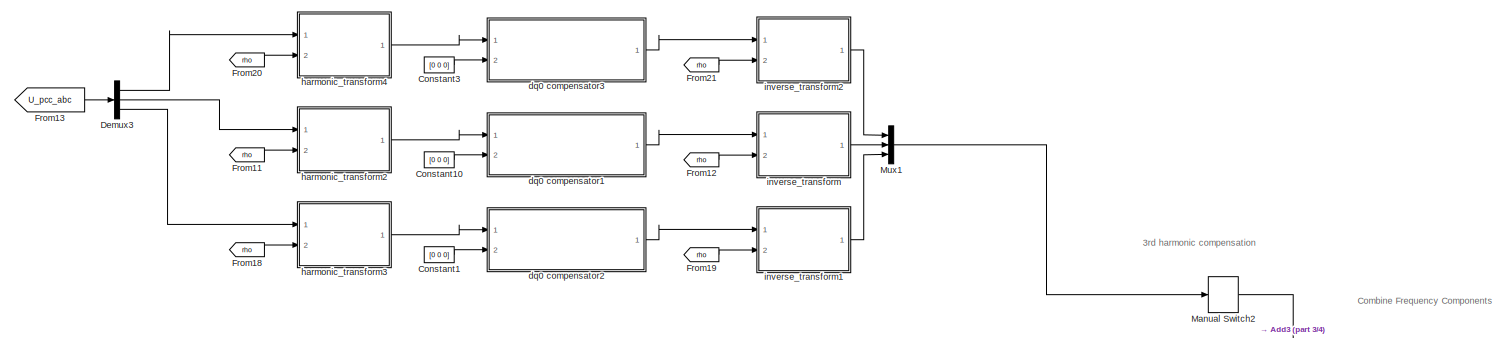
[diagram: root canvas - part 1/4, top center region]
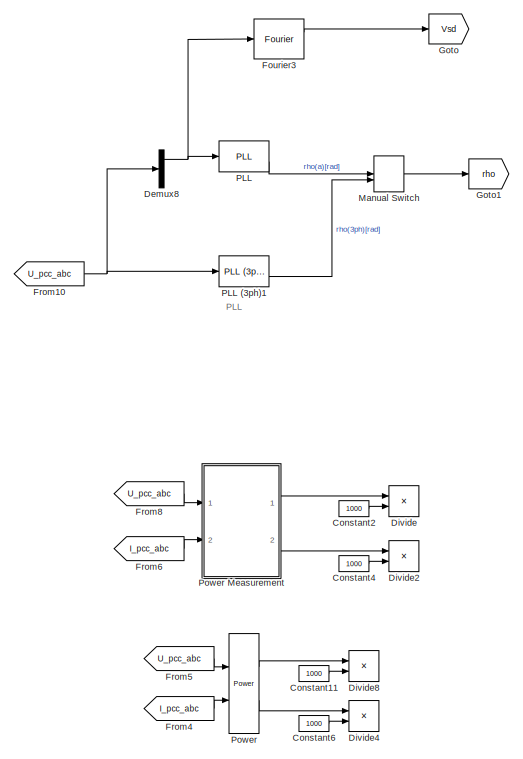
[diagram: root canvas - part 2/4, middle right region]
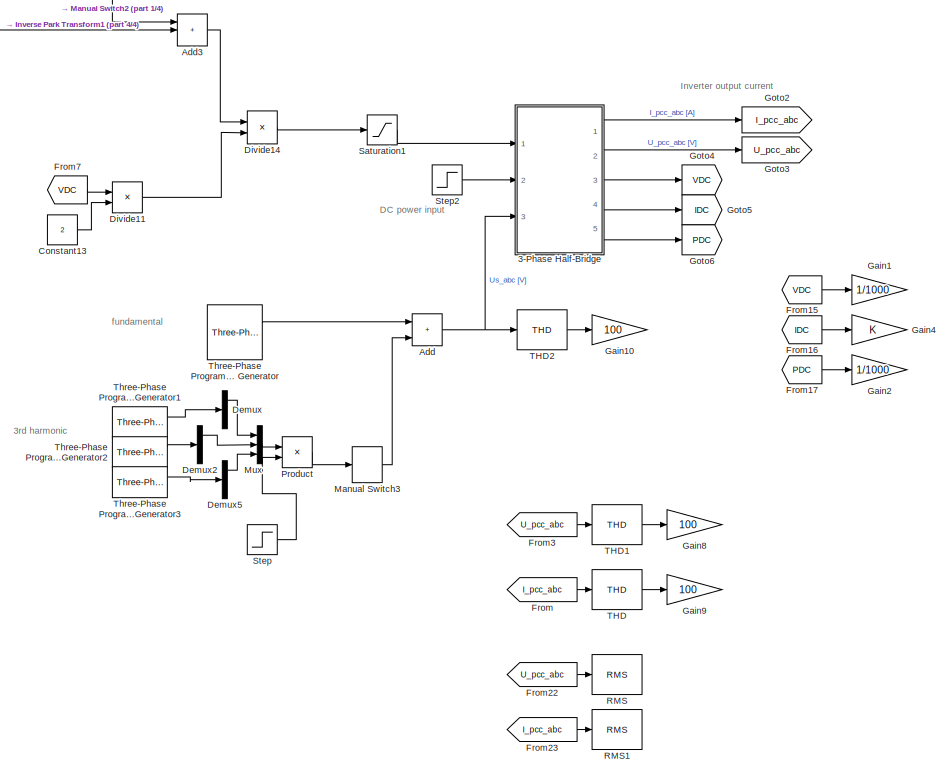
[diagram: root canvas - part 3/4, central region]
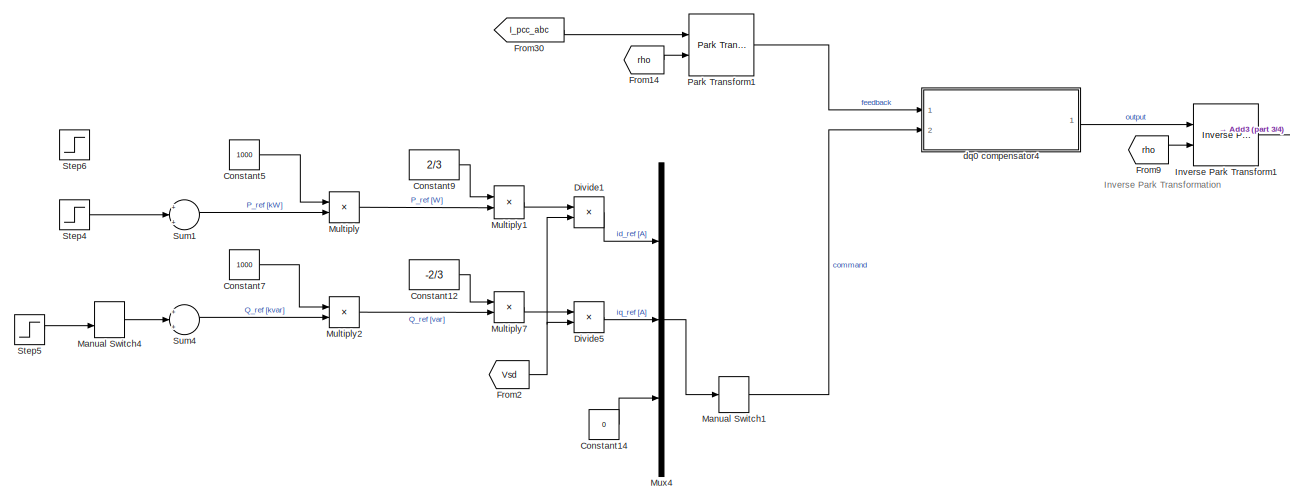
[diagram: root canvas - part 4/4, middle left region]
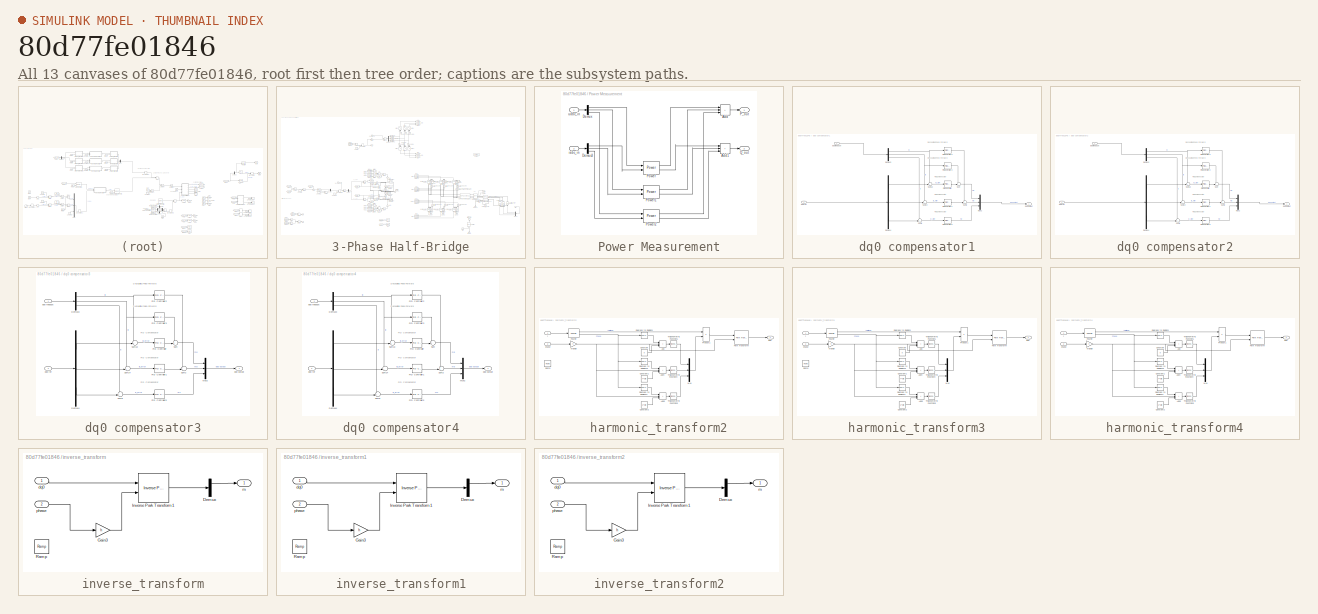
[diagram: thumbnail index - all 13 canvases of the model, root first then tree order]
MODEL slx_80d77fe01846
KIND model
CONFIG AbsTol = auto
CONFIG EnableMultiTasking = on
CONFIG FixedStep = auto
CONFIG MaxStep = 0.01
CONFIG MinStep = auto
CONFIG RelTol = 2e-4
CONFIG SampleTimeConstraint = Unconstrained
CONFIG Solver = VariableStepAuto
CONFIG SolverName = VariableStepAuto
CONFIG StartTime = 0.0
CONFIG StopTime = 1
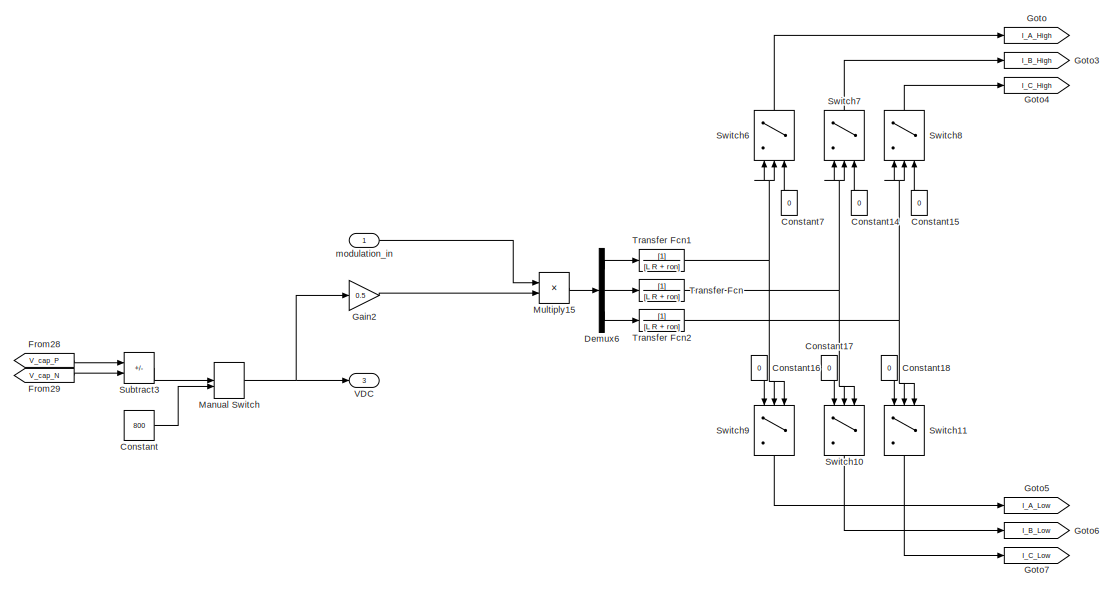
[diagram: 3-Phase Half-Bridge - part 1/6, top center region]
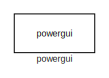
[diagram: 3-Phase Half-Bridge - part 2/6, top right region]
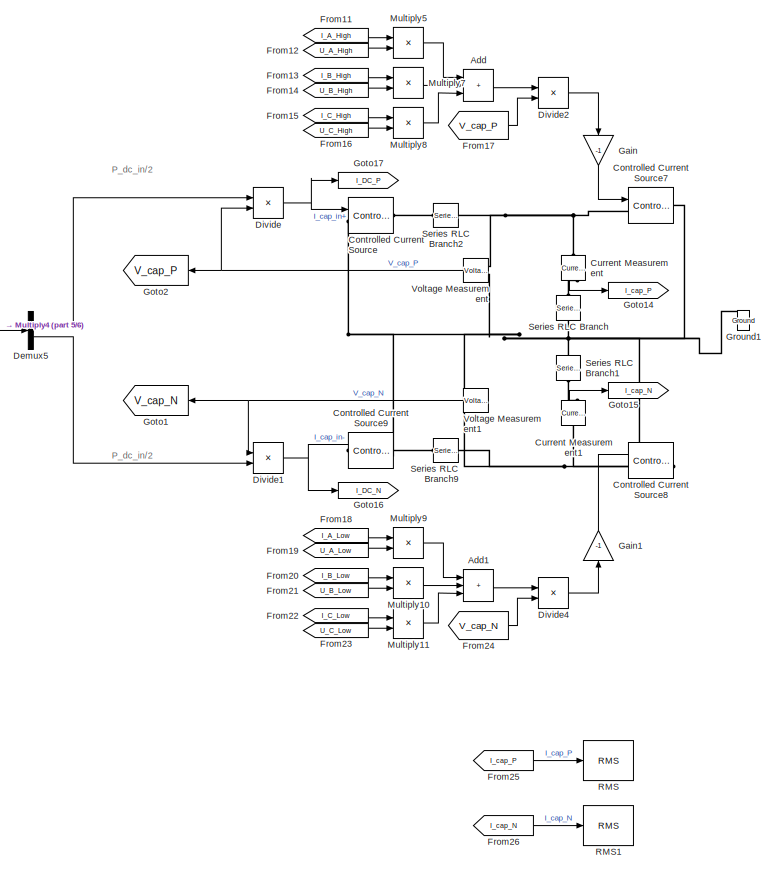
[diagram: 3-Phase Half-Bridge - part 3/6, bottom center region]
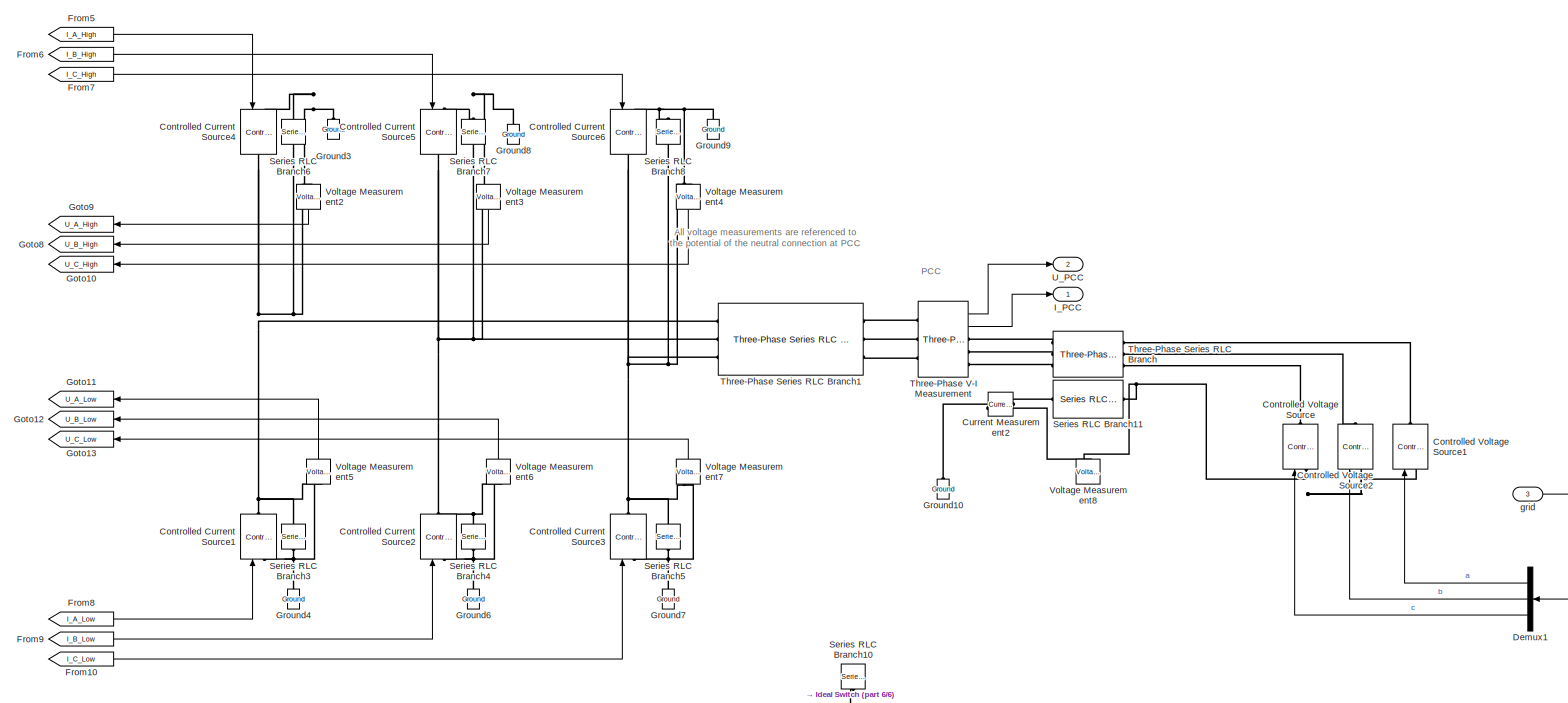
[diagram: 3-Phase Half-Bridge - part 4/6, bottom right region]
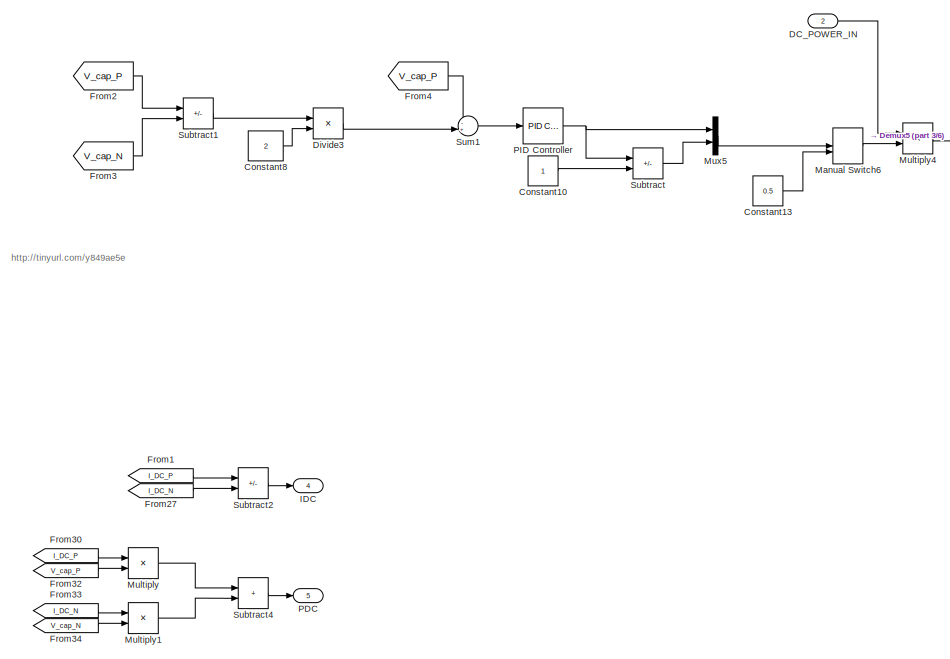
[diagram: 3-Phase Half-Bridge - part 5/6, bottom left region]
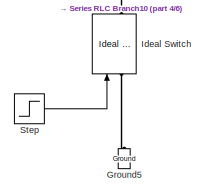
[diagram: 3-Phase Half-Bridge - part 6/6, bottom right region]
BLOCK [SubSystem] 3-Phase Half-Bridge
  Ports = [3, 5]
  RequestExecContextInheritance = off
BLOCK [Sum] 3-Phase Half-Bridge/Add
  IconShape = rectangular
  Inputs = 3
  Ports = [3, 1]
BLOCK [Sum] 3-Phase Half-Bridge/Add1
  IconShape = rectangular
  Inputs = 3
  Ports = [3, 1]
BLOCK [Constant] 3-Phase Half-Bridge/Constant
  Value = 800
BLOCK [Constant] 3-Phase Half-Bridge/Constant10
BLOCK [Constant] 3-Phase Half-Bridge/Constant13
  Value = 0.5
BLOCK [Constant] 3-Phase Half-Bridge/Constant14
  NameLocation = left
  Value = 0
BLOCK [Constant] 3-Phase Half-Bridge/Constant15
  NameLocation = left
  Value = 0
BLOCK [Constant] 3-Phase Half-Bridge/Constant16
  NameLocation = left
  Value = 0
BLOCK [Constant] 3-Phase Half-Bridge/Constant17
  NameLocation = left
  Value = 0
BLOCK [Constant] 3-Phase Half-Bridge/Constant18
  NameLocation = left
  Value = 0
BLOCK [Constant] 3-Phase Half-Bridge/Constant7
  NameLocation = left
  Value = 0
BLOCK [Constant] 3-Phase Half-Bridge/Constant8
  Value = 2
BLOCK [Reference] 3-Phase Half-Bridge/Controlled Current Source  REF=powerlib/Electrical
Sources/Controlled Current Source
  Ports = [1, 0, 0, 0, 0, 1, 1]
  SourceBlock = powerlib/Electrical\nSources/Controlled Current Source
  SourceProductBaseCode = PS
  SourceType = Controlled Current Source
BLOCK [Reference] 3-Phase Half-Bridge/Controlled Current Source1  REF=powerlib/Electrical
Sources/Controlled Current Source
  NameLocation = right
  Ports = [1, 0, 0, 0, 0, 1, 1]
  SourceBlock = powerlib/Electrical\nSources/Controlled Current Source
  SourceProductBaseCode = PS
  SourceType = Controlled Current Source
BLOCK [Reference] 3-Phase Half-Bridge/Controlled Current Source2  REF=powerlib/Electrical
Sources/Controlled Current Source
  NameLocation = right
  Ports = [1, 0, 0, 0, 0, 1, 1]
  SourceBlock = powerlib/Electrical\nSources/Controlled Current Source
  SourceProductBaseCode = PS
  SourceType = Controlled Current Source
BLOCK [Reference] 3-Phase Half-Bridge/Controlled Current Source3  REF=powerlib/Electrical
Sources/Controlled Current Source
  NameLocation = right
  Ports = [1, 0, 0, 0, 0, 1, 1]
  SourceBlock = powerlib/Electrical\nSources/Controlled Current Source
  SourceProductBaseCode = PS
  SourceType = Controlled Current Source
BLOCK [Reference] 3-Phase Half-Bridge/Controlled Current Source4  REF=powerlib/Electrical
Sources/Controlled Current Source
  NameLocation = right
  Ports = [1, 0, 0, 0, 0, 1, 1]
  SourceBlock = powerlib/Electrical\nSources/Controlled Current Source
  SourceProductBaseCode = PS
  SourceType = Controlled Current Source
BLOCK [Reference] 3-Phase Half-Bridge/Controlled Current Source5  REF=powerlib/Electrical
Sources/Controlled Current Source
  NameLocation = right
  Ports = [1, 0, 0, 0, 0, 1, 1]
  SourceBlock = powerlib/Electrical\nSources/Controlled Current Source
  SourceProductBaseCode = PS
  SourceType = Controlled Current Source
BLOCK [Reference] 3-Phase Half-Bridge/Controlled Current Source6  REF=powerlib/Electrical
Sources/Controlled Current Source
  NameLocation = right
  Ports = [1, 0, 0, 0, 0, 1, 1]
  SourceBlock = powerlib/Electrical\nSources/Controlled Current Source
  SourceProductBaseCode = PS
  SourceType = Controlled Current Source
BLOCK [Reference] 3-Phase Half-Bridge/Controlled Current Source7  REF=powerlib/Electrical
Sources/Controlled Current Source
  Ports = [1, 0, 0, 0, 0, 1, 1]
  SourceBlock = powerlib/Electrical\nSources/Controlled Current Source
  SourceProductBaseCode = PS
  SourceType = Controlled Current Source
BLOCK [Reference] 3-Phase Half-Bridge/Controlled Current Source8  REF=powerlib/Electrical
Sources/Controlled Current Source
  Ports = [1, 0, 0, 0, 0, 1, 1]
  SourceBlock = powerlib/Electrical\nSources/Controlled Current Source
  SourceProductBaseCode = PS
  SourceType = Controlled Current Source
BLOCK [Reference] 3-Phase Half-Bridge/Controlled Current Source9  REF=powerlib/Electrical
Sources/Controlled Current Source
  Ports = [1, 0, 0, 0, 0, 1, 1]
  SourceBlock = powerlib/Electrical\nSources/Controlled Current Source
  SourceProductBaseCode = PS
  SourceType = Controlled Current Source
BLOCK [Reference] 3-Phase Half-Bridge/Controlled Voltage Source  REF=powerlib/Electrical
Sources/Controlled Voltage Source
  NameLocation = right
  Ports = [1, 0, 0, 0, 0, 1, 1]
  SourceBlock = powerlib/Electrical\nSources/Controlled Voltage Source
  SourceProductBaseCode = PS
  SourceType = Controlled Voltage Source
BLOCK [Reference] 3-Phase Half-Bridge/Controlled Voltage Source1  REF=powerlib/Electrical
Sources/Controlled Voltage Source
  NameLocation = right
  Ports = [1, 0, 0, 0, 0, 1, 1]
  SourceBlock = powerlib/Electrical\nSources/Controlled Voltage Source
  SourceProductBaseCode = PS
  SourceType = Controlled Voltage Source
BLOCK [Reference] 3-Phase Half-Bridge/Controlled Voltage Source2  REF=powerlib/Electrical
Sources/Controlled Voltage Source
  NameLocation = right
  Ports = [1, 0, 0, 0, 0, 1, 1]
  SourceBlock = powerlib/Electrical\nSources/Controlled Voltage Source
  SourceProductBaseCode = PS
  SourceType = Controlled Voltage Source
BLOCK [Reference] 3-Phase Half-Bridge/Current Measurement  REF=powerlib/Measurements/Current Measurement
  NameLocation = left
  Ports = [0, 1, 0, 0, 0, 1, 1]
  SourceBlock = powerlib/Measurements/Current Measurement
  SourceProductBaseCode = PS
  SourceType = Current Measurement
  UserDataPersistent = on
BLOCK [Reference] 3-Phase Half-Bridge/Current Measurement1  REF=powerlib/Measurements/Current Measurement
  NameLocation = left
  Ports = [0, 1, 0, 0, 0, 1, 1]
  SourceBlock = powerlib/Measurements/Current Measurement
  SourceProductBaseCode = PS
  SourceType = Current Measurement
  UserDataPersistent = on
BLOCK [Reference] 3-Phase Half-Bridge/Current Measurement2  REF=powerlib/Measurements/Current Measurement
  NameLocation = top
  Ports = [0, 1, 0, 0, 0, 1, 1]
  SourceBlock = powerlib/Measurements/Current Measurement
  SourceProductBaseCode = PS
  SourceType = Current Measurement
  UserDataPersistent = on
BLOCK [Inport] 3-Phase Half-Bridge/DC_POWER_IN
  Port = 2
BLOCK [Demux] 3-Phase Half-Bridge/Demux1
  Outputs = 3
  Ports = [1, 3]
BLOCK [Demux] 3-Phase Half-Bridge/Demux5
  Outputs = 2
  Ports = [1, 2]
BLOCK [Demux] 3-Phase Half-Bridge/Demux6
  Outputs = 3
  Ports = [1, 3]
BLOCK [Product] 3-Phase Half-Bridge/Divide
  Inputs = */
  Ports = [2, 1]
BLOCK [Product] 3-Phase Half-Bridge/Divide1
  Inputs = /*
  Ports = [2, 1]
BLOCK [Product] 3-Phase Half-Bridge/Divide2
  Inputs = */
  Ports = [2, 1]
BLOCK [Product] 3-Phase Half-Bridge/Divide3
  Inputs = */
  Ports = [2, 1]
BLOCK [Product] 3-Phase Half-Bridge/Divide4
  Inputs = */
  Ports = [2, 1]
BLOCK [From] 3-Phase Half-Bridge/From1
  GotoTag = I_DC_P
BLOCK [From] 3-Phase Half-Bridge/From10
  GotoTag = I_C_Low
BLOCK [From] 3-Phase Half-Bridge/From11
  GotoTag = I_A_High
BLOCK [From] 3-Phase Half-Bridge/From12
  GotoTag = U_A_High
BLOCK [From] 3-Phase Half-Bridge/From13
  GotoTag = I_B_High
BLOCK [From] 3-Phase Half-Bridge/From14
  GotoTag = U_B_High
BLOCK [From] 3-Phase Half-Bridge/From15
  GotoTag = I_C_High
BLOCK [From] 3-Phase Half-Bridge/From16
  GotoTag = U_C_High
BLOCK [From] 3-Phase Half-Bridge/From17
  GotoTag = V_cap_P
BLOCK [From] 3-Phase Half-Bridge/From18
  GotoTag = I_A_Low
BLOCK [From] 3-Phase Half-Bridge/From19
  GotoTag = U_A_Low
BLOCK [From] 3-Phase Half-Bridge/From2
  GotoTag = V_cap_P
BLOCK [From] 3-Phase Half-Bridge/From20
  GotoTag = I_B_Low
BLOCK [From] 3-Phase Half-Bridge/From21
  GotoTag = U_B_Low
BLOCK [From] 3-Phase Half-Bridge/From22
  GotoTag = I_C_Low
BLOCK [From] 3-Phase Half-Bridge/From23
  GotoTag = U_C_Low
BLOCK [From] 3-Phase Half-Bridge/From24
  GotoTag = V_cap_N
BLOCK [From] 3-Phase Half-Bridge/From25
  GotoTag = I_cap_P
BLOCK [From] 3-Phase Half-Bridge/From26
  GotoTag = I_cap_N
BLOCK [From] 3-Phase Half-Bridge/From27
  GotoTag = I_DC_N
BLOCK [From] 3-Phase Half-Bridge/From28
  GotoTag = V_cap_P
BLOCK [From] 3-Phase Half-Bridge/From29
  GotoTag = V_cap_N
BLOCK [From] 3-Phase Half-Bridge/From3
  GotoTag = V_cap_N
BLOCK [From] 3-Phase Half-Bridge/From30
  GotoTag = I_DC_P
BLOCK [From] 3-Phase Half-Bridge/From32
  GotoTag = V_cap_P
BLOCK [From] 3-Phase Half-Bridge/From33
  GotoTag = I_DC_N
BLOCK [From] 3-Phase Half-Bridge/From34
  GotoTag = V_cap_N
BLOCK [From] 3-Phase Half-Bridge/From4
  GotoTag = V_cap_P
BLOCK [From] 3-Phase Half-Bridge/From5
  GotoTag = I_A_High
BLOCK [From] 3-Phase Half-Bridge/From6
  GotoTag = I_B_High
BLOCK [From] 3-Phase Half-Bridge/From7
  GotoTag = I_C_High
BLOCK [From] 3-Phase Half-Bridge/From8
  GotoTag = I_A_Low
BLOCK [From] 3-Phase Half-Bridge/From9
  GotoTag = I_B_Low
BLOCK [Gain] 3-Phase Half-Bridge/Gain
  Gain = -1
  NameLocation = left
BLOCK [Gain] 3-Phase Half-Bridge/Gain1
  Gain = -1
  NameLocation = right
BLOCK [Gain] 3-Phase Half-Bridge/Gain2
  Gain = 0.5
BLOCK [Goto] 3-Phase Half-Bridge/Goto
  GotoTag = I_A_High
BLOCK [Goto] 3-Phase Half-Bridge/Goto1
  GotoTag = V_cap_N
BLOCK [Goto] 3-Phase Half-Bridge/Goto10
  GotoTag = U_C_High
BLOCK [Goto] 3-Phase Half-Bridge/Goto11
  GotoTag = U_A_Low
BLOCK [Goto] 3-Phase Half-Bridge/Goto12
  GotoTag = U_B_Low
BLOCK [Goto] 3-Phase Half-Bridge/Goto13
  GotoTag = U_C_Low
BLOCK [Goto] 3-Phase Half-Bridge/Goto14
  GotoTag = I_cap_P
BLOCK [Goto] 3-Phase Half-Bridge/Goto15
  GotoTag = I_cap_N
BLOCK [Goto] 3-Phase Half-Bridge/Goto16
  GotoTag = I_DC_N
BLOCK [Goto] 3-Phase Half-Bridge/Goto17
  GotoTag = I_DC_P
BLOCK [Goto] 3-Phase Half-Bridge/Goto2
  GotoTag = V_cap_P
BLOCK [Goto] 3-Phase Half-Bridge/Goto3
  GotoTag = I_B_High
BLOCK [Goto] 3-Phase Half-Bridge/Goto4
  GotoTag = I_C_High
BLOCK [Goto] 3-Phase Half-Bridge/Goto5
  GotoTag = I_A_Low
BLOCK [Goto] 3-Phase Half-Bridge/Goto6
  GotoTag = I_B_Low
BLOCK [Goto] 3-Phase Half-Bridge/Goto7
  GotoTag = I_C_Low
BLOCK [Goto] 3-Phase Half-Bridge/Goto8
  GotoTag = U_B_High
BLOCK [Goto] 3-Phase Half-Bridge/Goto9
  GotoTag = U_A_High
BLOCK [Reference] 3-Phase Half-Bridge/Ground1  REF=powerlib/Elements/Ground
  NameLocation = right
  Ports = [0, 0, 0, 0, 0, 1]
  SourceBlock = powerlib/Elements/Ground
  SourceProductBaseCode = PS
  SourceType = Ground
BLOCK [Reference] 3-Phase Half-Bridge/Ground10  REF=powerlib/Elements/Ground
  NameLocation = right
  Ports = [0, 0, 0, 0, 0, 1]
  SourceBlock = powerlib/Elements/Ground
  SourceProductBaseCode = PS
  SourceType = Ground
BLOCK [Reference] 3-Phase Half-Bridge/Ground3  REF=powerlib/Elements/Ground
  NameLocation = right
  Ports = [0, 0, 0, 0, 0, 1]
  SourceBlock = powerlib/Elements/Ground
  SourceProductBaseCode = PS
  SourceType = Ground
BLOCK [Reference] 3-Phase Half-Bridge/Ground4  REF=powerlib/Elements/Ground
  NameLocation = right
  Ports = [0, 0, 0, 0, 0, 1]
  SourceBlock = powerlib/Elements/Ground
  SourceProductBaseCode = PS
  SourceType = Ground
BLOCK [Reference] 3-Phase Half-Bridge/Ground5  REF=powerlib/Elements/Ground
  NameLocation = right
  Ports = [0, 0, 0, 0, 0, 1]
  SourceBlock = powerlib/Elements/Ground
  SourceProductBaseCode = PS
  SourceType = Ground
BLOCK [Reference] 3-Phase Half-Bridge/Ground6  REF=powerlib/Elements/Ground
  NameLocation = right
  Ports = [0, 0, 0, 0, 0, 1]
  SourceBlock = powerlib/Elements/Ground
  SourceProductBaseCode = PS
  SourceType = Ground
BLOCK [Reference] 3-Phase Half-Bridge/Ground7  REF=powerlib/Elements/Ground
  NameLocation = right
  Ports = [0, 0, 0, 0, 0, 1]
  SourceBlock = powerlib/Elements/Ground
  SourceProductBaseCode = PS
  SourceType = Ground
BLOCK [Reference] 3-Phase Half-Bridge/Ground8  REF=powerlib/Elements/Ground
  NameLocation = right
  Ports = [0, 0, 0, 0, 0, 1]
  SourceBlock = powerlib/Elements/Ground
  SourceProductBaseCode = PS
  SourceType = Ground
BLOCK [Reference] 3-Phase Half-Bridge/Ground9  REF=powerlib/Elements/Ground
  NameLocation = right
  Ports = [0, 0, 0, 0, 0, 1]
  SourceBlock = powerlib/Elements/Ground
  SourceProductBaseCode = PS
  SourceType = Ground
BLOCK [Outport] 3-Phase Half-Bridge/IDC
  Port = 4
  VectorParamsAs1DForOutWhenUnconnected = off
BLOCK [Outport] 3-Phase Half-Bridge/I_PCC
  VectorParamsAs1DForOutWhenUnconnected = off
BLOCK [Reference] 3-Phase Half-Bridge/Ideal Switch  REF=powerlib/Power
Electronics/Ideal Switch
  NameLocation = right
  Ports = [1, 1, 0, 0, 0, 1, 1]
  SourceBlock = powerlib/Power\nElectronics/Ideal Switch
  SourceProductBaseCode = PS
  SourceType = Ideal Switch
BLOCK [ManualSwitch] 3-Phase Half-Bridge/Manual Switch
  CurrentSetting = 0
BLOCK [ManualSwitch] 3-Phase Half-Bridge/Manual Switch6
  CurrentSetting = 0
BLOCK [Product] 3-Phase Half-Bridge/Multiply
  Ports = [2, 1]
BLOCK [Product] 3-Phase Half-Bridge/Multiply1
  Ports = [2, 1]
BLOCK [Product] 3-Phase Half-Bridge/Multiply10
  Ports = [2, 1]
BLOCK [Product] 3-Phase Half-Bridge/Multiply11
  Ports = [2, 1]
BLOCK [Product] 3-Phase Half-Bridge/Multiply15
  Ports = [2, 1]
BLOCK [Product] 3-Phase Half-Bridge/Multiply4
  Ports = [2, 1]
BLOCK [Product] 3-Phase Half-Bridge/Multiply5
  Ports = [2, 1]
BLOCK [Product] 3-Phase Half-Bridge/Multiply7
  Ports = [2, 1]
BLOCK [Product] 3-Phase Half-Bridge/Multiply8
  Ports = [2, 1]
BLOCK [Product] 3-Phase Half-Bridge/Multiply9
  Ports = [2, 1]
BLOCK [Mux] 3-Phase Half-Bridge/Mux5
  DisplayOption = bar
  Inputs = 2
  Ports = [2, 1]
BLOCK [Outport] 3-Phase Half-Bridge/PDC
  Port = 5
  VectorParamsAs1DForOutWhenUnconnected = off
BLOCK [Reference] 3-Phase Half-Bridge/PID Controller  REF=simulink/Continuous/PID Controller
  Ports = [1, 1]
  SourceBlock = simulink/Continuous/PID Controller
  SourceProductBaseCode = SL
  SourceType = PID 1dof
BLOCK [Reference] 3-Phase Half-Bridge/RMS  REF=powerlib_meascontrol/Measurements/RMS
  Ports = [1, 1]
  SourceBlock = powerlib_meascontrol/Measurements/RMS
  SourceProductBaseCode = PS
  SourceType = RMS
BLOCK [Reference] 3-Phase Half-Bridge/RMS1  REF=powerlib_meascontrol/Measurements/RMS
  Ports = [1, 1]
  SourceBlock = powerlib_meascontrol/Measurements/RMS
  SourceProductBaseCode = PS
  SourceType = RMS
BLOCK [Reference] 3-Phase Half-Bridge/Series RLC Branch  REF=powerlib/Elements/Series RLC Branch
  NameLocation = left
  Ports = [0, 0, 0, 0, 0, 1, 1]
  SourceBlock = powerlib/Elements/Series RLC Branch
  SourceProductBaseCode = PS
  SourceType = Series RLC Branch
BLOCK [Reference] 3-Phase Half-Bridge/Series RLC Branch1  REF=powerlib/Elements/Series RLC Branch
  NameLocation = left
  Ports = [0, 0, 0, 0, 0, 1, 1]
  SourceBlock = powerlib/Elements/Series RLC Branch
  SourceProductBaseCode = PS
  SourceType = Series RLC Branch
BLOCK [Reference] 3-Phase Half-Bridge/Series RLC Branch10  REF=powerlib/Elements/Series RLC Branch
  NameLocation = left
  Ports = [0, 0, 0, 0, 0, 1, 1]
  SourceBlock = powerlib/Elements/Series RLC Branch
  SourceProductBaseCode = PS
  SourceType = Series RLC Branch
BLOCK [Reference] 3-Phase Half-Bridge/Series RLC Branch11  REF=powerlib/Elements/Series RLC Branch
  Ports = [0, 0, 0, 0, 0, 1, 1]
  SourceBlock = powerlib/Elements/Series RLC Branch
  SourceProductBaseCode = PS
  SourceType = Series RLC Branch
BLOCK [Reference] 3-Phase Half-Bridge/Series RLC Branch2  REF=powerlib/Elements/Series RLC Branch
  NameLocation = top
  Ports = [0, 0, 0, 0, 0, 1, 1]
  SourceBlock = powerlib/Elements/Series RLC Branch
  SourceProductBaseCode = PS
  SourceType = Series RLC Branch
BLOCK [Reference] 3-Phase Half-Bridge/Series RLC Branch3  REF=powerlib/Elements/Series RLC Branch
  NameLocation = left
  Ports = [0, 0, 0, 0, 0, 1, 1]
  SourceBlock = powerlib/Elements/Series RLC Branch
  SourceProductBaseCode = PS
  SourceType = Series RLC Branch
BLOCK [Reference] 3-Phase Half-Bridge/Series RLC Branch4  REF=powerlib/Elements/Series RLC Branch
  NameLocation = left
  Ports = [0, 0, 0, 0, 0, 1, 1]
  SourceBlock = powerlib/Elements/Series RLC Branch
  SourceProductBaseCode = PS
  SourceType = Series RLC Branch
BLOCK [Reference] 3-Phase Half-Bridge/Series RLC Branch5  REF=powerlib/Elements/Series RLC Branch
  NameLocation = left
  Ports = [0, 0, 0, 0, 0, 1, 1]
  SourceBlock = powerlib/Elements/Series RLC Branch
  SourceProductBaseCode = PS
  SourceType = Series RLC Branch
BLOCK [Reference] 3-Phase Half-Bridge/Series RLC Branch6  REF=powerlib/Elements/Series RLC Branch
  NameLocation = left
  Ports = [0, 0, 0, 0, 0, 1, 1]
  SourceBlock = powerlib/Elements/Series RLC Branch
  SourceProductBaseCode = PS
  SourceType = Series RLC Branch
BLOCK [Reference] 3-Phase Half-Bridge/Series RLC Branch7  REF=powerlib/Elements/Series RLC Branch
  NameLocation = left
  Ports = [0, 0, 0, 0, 0, 1, 1]
  SourceBlock = powerlib/Elements/Series RLC Branch
  SourceProductBaseCode = PS
  SourceType = Series RLC Branch
BLOCK [Reference] 3-Phase Half-Bridge/Series RLC Branch8  REF=powerlib/Elements/Series RLC Branch
  NameLocation = left
  Ports = [0, 0, 0, 0, 0, 1, 1]
  SourceBlock = powerlib/Elements/Series RLC Branch
  SourceProductBaseCode = PS
  SourceType = Series RLC Branch
BLOCK [Reference] 3-Phase Half-Bridge/Series RLC Branch9  REF=powerlib/Elements/Series RLC Branch
  NameLocation = top
  Ports = [0, 0, 0, 0, 0, 1, 1]
  SourceBlock = powerlib/Elements/Series RLC Branch
  SourceProductBaseCode = PS
  SourceType = Series RLC Branch
BLOCK [Step] 3-Phase Half-Bridge/Step
  SampleTime = 0
  Time = 0.25
BLOCK [Sum] 3-Phase Half-Bridge/Subtract
  IconShape = rectangular
  Inputs = -+
  Ports = [2, 1]
BLOCK [Sum] 3-Phase Half-Bridge/Subtract1
  IconShape = rectangular
  Inputs = +-
  Ports = [2, 1]
BLOCK [Sum] 3-Phase Half-Bridge/Subtract2
  IconShape = rectangular
  Inputs = +-
  Ports = [2, 1]
BLOCK [Sum] 3-Phase Half-Bridge/Subtract3
  IconShape = rectangular
  Inputs = +-
  Ports = [2, 1]
BLOCK [Sum] 3-Phase Half-Bridge/Subtract4
  IconShape = rectangular
  Ports = [2, 1]
BLOCK [Sum] 3-Phase Half-Bridge/Sum1
  Inputs = -+|
  Ports = [2, 1]
BLOCK [Switch] 3-Phase Half-Bridge/Switch10
  Criteria = u2 > Threshold
  InputSameDT = off
  NameLocation = left
  SaturateOnIntegerOverflow = off
BLOCK [Switch] 3-Phase Half-Bridge/Switch11
  Criteria = u2 > Threshold
  InputSameDT = off
  NameLocation = left
  SaturateOnIntegerOverflow = off
BLOCK [Switch] 3-Phase Half-Bridge/Switch6
  Criteria = u2 > Threshold
  InputSameDT = off
  NameLocation = left
  SaturateOnIntegerOverflow = off
BLOCK [Switch] 3-Phase Half-Bridge/Switch7
  Criteria = u2 > Threshold
  InputSameDT = off
  NameLocation = left
  SaturateOnIntegerOverflow = off
BLOCK [Switch] 3-Phase Half-Bridge/Switch8
  Criteria = u2 > Threshold
  InputSameDT = off
  NameLocation = left
  SaturateOnIntegerOverflow = off
BLOCK [Switch] 3-Phase Half-Bridge/Switch9
  Criteria = u2 > Threshold
  InputSameDT = off
  NameLocation = left
  SaturateOnIntegerOverflow = off
BLOCK [Reference] 3-Phase Half-Bridge/Three-Phase Series RLC Branch  REF=powerlib/Elements/Three-Phase
Series RLC Branch
  AttributesFormatString = \n
  Ports = [0, 0, 0, 0, 0, 3, 3]
  SourceBlock = powerlib/Elements/Three-Phase\nSeries RLC Branch
  SourceProductBaseCode = PS
  SourceType = Three-Phase Series RLC Branch
BLOCK [Reference] 3-Phase Half-Bridge/Three-Phase Series RLC Branch1  REF=powerlib/Elements/Three-Phase
Series RLC Branch
  AttributesFormatString = \n
  Ports = [0, 0, 0, 0, 0, 3, 3]
  SourceBlock = powerlib/Elements/Three-Phase\nSeries RLC Branch
  SourceProductBaseCode = PS
  SourceType = Three-Phase Series RLC Branch
BLOCK [Reference] 3-Phase Half-Bridge/Three-Phase V-I Measurement  REF=powerlib/Measurements/Three-Phase
V-I Measurement
  Ports = [0, 2, 0, 0, 0, 3, 3]
  SourceBlock = powerlib/Measurements/Three-Phase\nV-I Measurement
  SourceProductBaseCode = PS
  SourceType = Three-Phase VI Measurement
BLOCK [TransferFcn] 3-Phase Half-Bridge/Transfer Fcn
  Denominator = [L R + ron]
BLOCK [TransferFcn] 3-Phase Half-Bridge/Transfer Fcn1
  Denominator = [L R + ron]
BLOCK [TransferFcn] 3-Phase Half-Bridge/Transfer Fcn2
  Denominator = [L R + ron]
BLOCK [Outport] 3-Phase Half-Bridge/U_PCC
  Port = 2
  VectorParamsAs1DForOutWhenUnconnected = off
BLOCK [Outport] 3-Phase Half-Bridge/VDC
  Port = 3
  VectorParamsAs1DForOutWhenUnconnected = off
BLOCK [Reference] 3-Phase Half-Bridge/Voltage Measurement  REF=powerlib/Measurements/Voltage Measurement
  Ports = [0, 1, 0, 0, 0, 2]
  SourceBlock = powerlib/Measurements/Voltage Measurement
  SourceProductBaseCode = PS
  SourceType = Voltage Measurement
  UserDataPersistent = on
BLOCK [Reference] 3-Phase Half-Bridge/Voltage Measurement1  REF=powerlib/Measurements/Voltage Measurement
  Ports = [0, 1, 0, 0, 0, 2]
  SourceBlock = powerlib/Measurements/Voltage Measurement
  SourceProductBaseCode = PS
  SourceType = Voltage Measurement
  UserDataPersistent = on
BLOCK [Reference] 3-Phase Half-Bridge/Voltage Measurement2  REF=powerlib/Measurements/Voltage Measurement
  NameLocation = left
  Ports = [0, 1, 0, 0, 0, 2]
  SourceBlock = powerlib/Measurements/Voltage Measurement
  SourceProductBaseCode = PS
  SourceType = Voltage Measurement
  UserDataPersistent = on
BLOCK [Reference] 3-Phase Half-Bridge/Voltage Measurement3  REF=powerlib/Measurements/Voltage Measurement
  NameLocation = left
  Ports = [0, 1, 0, 0, 0, 2]
  SourceBlock = powerlib/Measurements/Voltage Measurement
  SourceProductBaseCode = PS
  SourceType = Voltage Measurement
  UserDataPersistent = on
BLOCK [Reference] 3-Phase Half-Bridge/Voltage Measurement4  REF=powerlib/Measurements/Voltage Measurement
  NameLocation = left
  Ports = [0, 1, 0, 0, 0, 2]
  SourceBlock = powerlib/Measurements/Voltage Measurement
  SourceProductBaseCode = PS
  SourceType = Voltage Measurement
  UserDataPersistent = on
BLOCK [Reference] 3-Phase Half-Bridge/Voltage Measurement5  REF=powerlib/Measurements/Voltage Measurement
  NameLocation = left
  Ports = [0, 1, 0, 0, 0, 2]
  SourceBlock = powerlib/Measurements/Voltage Measurement
  SourceProductBaseCode = PS
  SourceType = Voltage Measurement
  UserDataPersistent = on
BLOCK [Reference] 3-Phase Half-Bridge/Voltage Measurement6  REF=powerlib/Measurements/Voltage Measurement
  NameLocation = left
  Ports = [0, 1, 0, 0, 0, 2]
  SourceBlock = powerlib/Measurements/Voltage Measurement
  SourceProductBaseCode = PS
  SourceType = Voltage Measurement
  UserDataPersistent = on
BLOCK [Reference] 3-Phase Half-Bridge/Voltage Measurement7  REF=powerlib/Measurements/Voltage Measurement
  NameLocation = left
  Ports = [0, 1, 0, 0, 0, 2]
  SourceBlock = powerlib/Measurements/Voltage Measurement
  SourceProductBaseCode = PS
  SourceType = Voltage Measurement
  UserDataPersistent = on
BLOCK [Reference] 3-Phase Half-Bridge/Voltage Measurement8  REF=powerlib/Measurements/Voltage Measurement
  NameLocation = left
  Ports = [0, 1, 0, 0, 0, 2]
  SourceBlock = powerlib/Measurements/Voltage Measurement
  SourceProductBaseCode = PS
  SourceType = Voltage Measurement
  UserDataPersistent = on
BLOCK [Inport] 3-Phase Half-Bridge/grid
  Port = 3
BLOCK [Inport] 3-Phase Half-Bridge/modulation_in
BLOCK [Reference] 3-Phase Half-Bridge/powergui  REF=powerlib/powergui
  Ports = []
  Priority = 1
  SourceBlock = powerlib/powergui
  SourceProductBaseCode = PS
  SourceType = PSB option menu block
BLOCK [Sum] Add
  IconShape = rectangular
  Inputs = +++
  Ports = [3, 1]
BLOCK [Sum] Add3
  IconShape = rectangular
  Inputs = +++
  Ports = [3, 1]
BLOCK [Constant] Constant1
  Value = [0 0 0]
BLOCK [Constant] Constant10
  Value = [0 0 0]
BLOCK [Constant] Constant11
  Value = 1000
BLOCK [Constant] Constant12
  Value = -2/3
BLOCK [Constant] Constant13
  Value = 2
BLOCK [Constant] Constant14
  Value = 0
BLOCK [Constant] Constant2
  Value = 1000
BLOCK [Constant] Constant3
  Value = [0 0 0]
BLOCK [Constant] Constant4
  Value = 1000
BLOCK [Constant] Constant5
  Value = 1000
BLOCK [Constant] Constant6
  Value = 1000
BLOCK [Constant] Constant7
  Value = 1000
BLOCK [Constant] Constant9
  Value = 2/3
BLOCK [Demux] Demux
  Outputs = 3
  Ports = [1, 3]
BLOCK [Demux] Demux2
  Outputs = 3
  Ports = [1, 3]
BLOCK [Demux] Demux3
  Outputs = 3
  Ports = [1, 3]
BLOCK [Demux] Demux5
  Outputs = 3
  Ports = [1, 3]
BLOCK [Demux] Demux8
  Outputs = 3
  Ports = [1, 3]
BLOCK [Product] Divide
  Inputs = */
  Ports = [2, 1]
BLOCK [Product] Divide1
  Inputs = */
  Ports = [2, 1]
BLOCK [Product] Divide11
  Inputs = */
  Ports = [2, 1]
BLOCK [Product] Divide14
  Inputs = */
  Ports = [2, 1]
  RndMeth = Zero
  SaturateOnIntegerOverflow = on
BLOCK [Product] Divide2
  Inputs = */
  Ports = [2, 1]
BLOCK [Product] Divide4
  Inputs = */
  Ports = [2, 1]
BLOCK [Product] Divide5
  Inputs = */
  Ports = [2, 1]
BLOCK [Product] Divide8
  Inputs = */
  Ports = [2, 1]
BLOCK [Reference] Fourier3  REF=powerlib_meascontrol/Measurements/Fourier
  Ports = [1, 2]
  SourceBlock = powerlib_meascontrol/Measurements/Fourier
  SourceProductBaseCode = PS
  SourceType = Fourier
BLOCK [From] From
  GotoTag = I_pcc_abc
BLOCK [From] From10
  GotoTag = U_pcc_abc
BLOCK [From] From11
  GotoTag = rho
BLOCK [From] From12
  GotoTag = rho
BLOCK [From] From13
  GotoTag = U_pcc_abc
BLOCK [From] From14
  GotoTag = rho
BLOCK [From] From15
  GotoTag = VDC
BLOCK [From] From16
  GotoTag = IDC
BLOCK [From] From17
  GotoTag = PDC
BLOCK [From] From18
  GotoTag = rho
BLOCK [From] From19
  GotoTag = rho
BLOCK [From] From2
  GotoTag = Vsd
BLOCK [From] From20
  GotoTag = rho
BLOCK [From] From21
  GotoTag = rho
BLOCK [From] From22
  GotoTag = U_pcc_abc
BLOCK [From] From23
  GotoTag = I_pcc_abc
BLOCK [From] From3
  GotoTag = U_pcc_abc
BLOCK [From] From30
  GotoTag = I_pcc_abc
BLOCK [From] From4
  GotoTag = I_pcc_abc
BLOCK [From] From5
  GotoTag = U_pcc_abc
BLOCK [From] From6
  GotoTag = I_pcc_abc
BLOCK [From] From7
  GotoTag = VDC
BLOCK [From] From8
  GotoTag = U_pcc_abc
BLOCK [From] From9
  GotoTag = rho
BLOCK [Gain] Gain1
  Gain = 1/1000
BLOCK [Gain] Gain10
  Gain = 100
BLOCK [Gain] Gain2
  Gain = 1/1000
BLOCK [Gain] Gain4
BLOCK [Gain] Gain8
  Gain = 100
BLOCK [Gain] Gain9
  Gain = 100
BLOCK [Goto] Goto
  GotoTag = Vsd
BLOCK [Goto] Goto1
  GotoTag = rho
BLOCK [Goto] Goto2
  GotoTag = I_pcc_abc
BLOCK [Goto] Goto3
  GotoTag = U_pcc_abc
BLOCK [Goto] Goto4
  GotoTag = VDC
BLOCK [Goto] Goto5
  GotoTag = IDC
BLOCK [Goto] Goto6
  GotoTag = PDC
BLOCK [Reference] Inverse Park Transform1  REF=eeTransforms/Inverse
Park Transform
  Ports = [2, 1]
  SourceBlock = eeTransforms/Inverse\nPark Transform
  SourceProductBaseCode = PS
  SourceType = Inverse Park Transform
BLOCK [ManualSwitch] Manual Switch
BLOCK [ManualSwitch] Manual Switch1
  CurrentSetting = 0
BLOCK [ManualSwitch] Manual Switch2
BLOCK [ManualSwitch] Manual Switch3
BLOCK [ManualSwitch] Manual Switch4
BLOCK [Product] Multiply
  Ports = [2, 1]
BLOCK [Product] Multiply1
  Ports = [2, 1]
BLOCK [Product] Multiply2
  Ports = [2, 1]
BLOCK [Product] Multiply7
  Ports = [2, 1]
BLOCK [Mux] Mux
  DisplayOption = bar
  Inputs = 3
  Ports = [3, 1]
BLOCK [Mux] Mux1
  DisplayOption = bar
  Inputs = 3
  Ports = [3, 1]
BLOCK [Mux] Mux4
  DisplayOption = bar
  Inputs = 3
  Ports = [3, 1]
BLOCK [Reference] PLL  REF=powerlib_meascontrol/PLL/PLL
  Ports = [1, 2]
  SourceBlock = powerlib_meascontrol/PLL/PLL
  SourceProductBaseCode = PS
  SourceType = PLL
BLOCK [Reference] PLL (3ph)1  REF=powerlib_meascontrol/PLL/PLL
(3ph)
  Ports = [1, 2]
  SourceBlock = powerlib_meascontrol/PLL/PLL\n(3ph)
  SourceProductBaseCode = PS
  SourceType = PLL (3ph)
BLOCK [Reference] Park Transform1  REF=eeTransforms/Park Transform
  Ports = [2, 1]
  SourceBlock = eeTransforms/Park Transform
  SourceProductBaseCode = PS
  SourceType = Park Transform
BLOCK [Reference] Power  REF=powerlib_meascontrol/Measurements/Power
  Ports = [2, 2]
  SourceBlock = powerlib_meascontrol/Measurements/Power
  SourceProductBaseCode = PS
  SourceType = Power
BLOCK [SubSystem] Power Measurement
  Ports = [2, 2]
  RequestExecContextInheritance = off
BLOCK [Sum] Power Measurement/Add
  IconShape = rectangular
  Inputs = 3
  Ports = [3, 1]
BLOCK [Sum] Power Measurement/Add1
  IconShape = rectangular
  Inputs = 3
  Ports = [3, 1]
BLOCK [Demux] Power Measurement/Demux
  Outputs = 3
  Ports = [1, 3]
BLOCK [Demux] Power Measurement/Demux3
  Outputs = 3
  Ports = [1, 3]
BLOCK [Outport] Power Measurement/P_out
  VectorParamsAs1DForOutWhenUnconnected = off
BLOCK [Reference] Power Measurement/Power  REF=powerlib_meascontrol/Measurements/Power
  Ports = [2, 2]
  SourceBlock = powerlib_meascontrol/Measurements/Power
  SourceProductBaseCode = PS
  SourceType = Power
BLOCK [Reference] Power Measurement/Power1  REF=powerlib_meascontrol/Measurements/Power
  Ports = [2, 2]
  SourceBlock = powerlib_meascontrol/Measurements/Power
  SourceProductBaseCode = PS
  SourceType = Power
BLOCK [Reference] Power Measurement/Power2  REF=powerlib_meascontrol/Measurements/Power
  Ports = [2, 2]
  SourceBlock = powerlib_meascontrol/Measurements/Power
  SourceProductBaseCode = PS
  SourceType = Power
BLOCK [Outport] Power Measurement/Q_out
  Port = 2
  VectorParamsAs1DForOutWhenUnconnected = off
BLOCK [Inport] Power Measurement/iabc_in
  Port = 2
BLOCK [Inport] Power Measurement/uabc_in
BLOCK [Product] Product
  Ports = [2, 1]
BLOCK [Reference] RMS  REF=powerlib_meascontrol/Measurements/RMS
  Ports = [1, 1]
  SourceBlock = powerlib_meascontrol/Measurements/RMS
  SourceProductBaseCode = PS
  SourceType = RMS
BLOCK [Reference] RMS1  REF=powerlib_meascontrol/Measurements/RMS
  Ports = [1, 1]
  SourceBlock = powerlib_meascontrol/Measurements/RMS
  SourceProductBaseCode = PS
  SourceType = RMS
BLOCK [Saturate] Saturation1
  LowerLimit = -1
  UpperLimit = 1
BLOCK [Step] Step
  After = 0.25
  SampleTime = 0
  Time = 0.4
BLOCK [Step] Step2
  After = 10000
  SampleTime = 0
  Time = 0.05
BLOCK [Step] Step4
  After = 8
  SampleTime = 0
  Time = 0.2
BLOCK [Step] Step5
  After = 6
  SampleTime = 0
  Time = 0.6
BLOCK [Step] Step6
  After = -4
  SampleTime = 0
  Time = 0.5
BLOCK [Sum] Sum1
  Inputs = +|+|+
  Ports = [3, 1]
BLOCK [Sum] Sum4
  Inputs = +|+|+
  Ports = [3, 1]
BLOCK [Reference] THD  REF=powerlib_meascontrol/Measurements/THD
  Ports = [1, 1]
  SourceBlock = powerlib_meascontrol/Measurements/THD
  SourceProductBaseCode = PS
  SourceType = THD
BLOCK [Reference] THD1  REF=powerlib_meascontrol/Measurements/THD
  Ports = [1, 1]
  SourceBlock = powerlib_meascontrol/Measurements/THD
  SourceProductBaseCode = PS
  SourceType = THD
BLOCK [Reference] THD2  REF=powerlib_meascontrol/Measurements/THD
  Ports = [1, 1]
  SourceBlock = powerlib_meascontrol/Measurements/THD
  SourceProductBaseCode = PS
  SourceType = THD
BLOCK [Reference] Three-Phase Programmable Generator  REF=powerlib_meascontrol/Pulse & Signal
Generators/Three-Phase
Programmable
Generator
  Ports = [0, 2]
  SourceBlock = powerlib_meascontrol/Pulse & Signal\nGenerators/Three-Phase\nProgrammable\nGenerator
  SourceProductBaseCode = PS
  SourceType = Three-Phase Programmable Generator
BLOCK [Reference] Three-Phase Programmable Generator1  REF=powerlib_meascontrol/Pulse & Signal
Generators/Three-Phase
Programmable
Generator
  Ports = [0, 2]
  SourceBlock = powerlib_meascontrol/Pulse & Signal\nGenerators/Three-Phase\nProgrammable\nGenerator
  SourceProductBaseCode = PS
  SourceType = Three-Phase Programmable Generator
BLOCK [Reference] Three-Phase Programmable Generator2  REF=powerlib_meascontrol/Pulse & Signal
Generators/Three-Phase
Programmable
Generator
  Ports = [0, 2]
  SourceBlock = powerlib_meascontrol/Pulse & Signal\nGenerators/Three-Phase\nProgrammable\nGenerator
  SourceProductBaseCode = PS
  SourceType = Three-Phase Programmable Generator
BLOCK [Reference] Three-Phase Programmable Generator3  REF=powerlib_meascontrol/Pulse & Signal
Generators/Three-Phase
Programmable
Generator
  Ports = [0, 2]
  SourceBlock = powerlib_meascontrol/Pulse & Signal\nGenerators/Three-Phase\nProgrammable\nGenerator
  SourceProductBaseCode = PS
  SourceType = Three-Phase Programmable Generator
BLOCK [SubSystem] dq0 compensator1
  Ports = [2, 1]
  RequestExecContextInheritance = off
BLOCK [Demux] dq0 compensator1/Demux3
  Outputs = 3
  Ports = [1, 3]
BLOCK [Demux] dq0 compensator1/Demux4
  Outputs = 3
  Ports = [1, 3]
BLOCK [Mux] dq0 compensator1/Mux2
  DisplayOption = bar
  Inputs = 3
  Ports = [3, 1]
BLOCK [Reference] dq0 compensator1/PID Controller  REF=simulink/Continuous/PID Controller
  Ports = [1, 1]
  SourceBlock = simulink/Continuous/PID Controller
  SourceProductBaseCode = SL
  SourceType = PID 1dof
BLOCK [Reference] dq0 compensator1/PID Controller1  REF=simulink/Continuous/PID Controller
  Ports = [1, 1]
  SourceBlock = simulink/Continuous/PID Controller
  SourceProductBaseCode = SL
  SourceType = PID 1dof
BLOCK [Reference] dq0 compensator1/PID Controller2  REF=simulink/Continuous/PID Controller
  Ports = [1, 1]
  SourceBlock = simulink/Continuous/PID Controller
  SourceProductBaseCode = SL
  SourceType = PID 1dof
BLOCK [Reference] dq0 compensator1/PID Controller3  REF=simulink/Continuous/PID Controller
  Ports = [1, 1]
  SourceBlock = simulink/Continuous/PID Controller
  SourceProductBaseCode = SL
  SourceType = PID 1dof
BLOCK [Reference] dq0 compensator1/PID Controller5  REF=simulink/Continuous/PID Controller
  Ports = [1, 1]
  SourceBlock = simulink/Continuous/PID Controller
  SourceProductBaseCode = SL
  SourceType = PID 1dof
BLOCK [Sum] dq0 compensator1/Sum
  Inputs = ++|
  Ports = [2, 1]
BLOCK [Sum] dq0 compensator1/Sum13
  Inputs = -+|
  Ports = [2, 1]
BLOCK [Sum] dq0 compensator1/Sum14
  Inputs = -+|
  Ports = [2, 1]
BLOCK [Sum] dq0 compensator1/Sum2
  Inputs = ++|
  Ports = [2, 1]
BLOCK [Sum] dq0 compensator1/Sum8
  Inputs = -+|
  Ports = [2, 1]
BLOCK [Inport] dq0 compensator1/dq0 feeback
BLOCK [Outport] dq0 compensator1/dq0 output
BLOCK [Inport] dq0 compensator1/dq0 ref
  Port = 2
BLOCK [SubSystem] dq0 compensator2
  Ports = [2, 1]
  RequestExecContextInheritance = off
BLOCK [Demux] dq0 compensator2/Demux3
  Outputs = 3
  Ports = [1, 3]
BLOCK [Demux] dq0 compensator2/Demux4
  Outputs = 3
  Ports = [1, 3]
BLOCK [Mux] dq0 compensator2/Mux2
  DisplayOption = bar
  Inputs = 3
  Ports = [3, 1]
BLOCK [Reference] dq0 compensator2/PID Controller  REF=simulink/Continuous/PID Controller
  Ports = [1, 1]
  SourceBlock = simulink/Continuous/PID Controller
  SourceProductBaseCode = SL
  SourceType = PID 1dof
BLOCK [Reference] dq0 compensator2/PID Controller1  REF=simulink/Continuous/PID Controller
  Ports = [1, 1]
  SourceBlock = simulink/Continuous/PID Controller
  SourceProductBaseCode = SL
  SourceType = PID 1dof
BLOCK [Reference] dq0 compensator2/PID Controller2  REF=simulink/Continuous/PID Controller
  Ports = [1, 1]
  SourceBlock = simulink/Continuous/PID Controller
  SourceProductBaseCode = SL
  SourceType = PID 1dof
BLOCK [Reference] dq0 compensator2/PID Controller3  REF=simulink/Continuous/PID Controller
  Ports = [1, 1]
  SourceBlock = simulink/Continuous/PID Controller
  SourceProductBaseCode = SL
  SourceType = PID 1dof
BLOCK [Reference] dq0 compensator2/PID Controller5  REF=simulink/Continuous/PID Controller
  Ports = [1, 1]
  SourceBlock = simulink/Continuous/PID Controller
  SourceProductBaseCode = SL
  SourceType = PID 1dof
BLOCK [Sum] dq0 compensator2/Sum
  Inputs = ++|
  Ports = [2, 1]
BLOCK [Sum] dq0 compensator2/Sum13
  Inputs = -+|
  Ports = [2, 1]
BLOCK [Sum] dq0 compensator2/Sum14
  Inputs = -+|
  Ports = [2, 1]
BLOCK [Sum] dq0 compensator2/Sum2
  Inputs = ++|
  Ports = [2, 1]
BLOCK [Sum] dq0 compensator2/Sum8
  Inputs = -+|
  Ports = [2, 1]
BLOCK [Inport] dq0 compensator2/dq0 feeback
BLOCK [Outport] dq0 compensator2/dq0 output
BLOCK [Inport] dq0 compensator2/dq0 ref
  Port = 2
BLOCK [SubSystem] dq0 compensator3
  Ports = [2, 1]
  RequestExecContextInheritance = off
BLOCK [Demux] dq0 compensator3/Demux3
  Outputs = 3
  Ports = [1, 3]
BLOCK [Demux] dq0 compensator3/Demux4
  Outputs = 3
  Ports = [1, 3]
BLOCK [Mux] dq0 compensator3/Mux2
  DisplayOption = bar
  Inputs = 3
  Ports = [3, 1]
BLOCK [Reference] dq0 compensator3/PID Controller  REF=simulink/Continuous/PID Controller
  Ports = [1, 1]
  SourceBlock = simulink/Continuous/PID Controller
  SourceProductBaseCode = SL
  SourceType = PID 1dof
BLOCK [Reference] dq0 compensator3/PID Controller1  REF=simulink/Continuous/PID Controller
  Ports = [1, 1]
  SourceBlock = simulink/Continuous/PID Controller
  SourceProductBaseCode = SL
  SourceType = PID 1dof
BLOCK [Reference] dq0 compensator3/PID Controller2  REF=simulink/Continuous/PID Controller
  Ports = [1, 1]
  SourceBlock = simulink/Continuous/PID Controller
  SourceProductBaseCode = SL
  SourceType = PID 1dof
BLOCK [Reference] dq0 compensator3/PID Controller3  REF=simulink/Continuous/PID Controller
  Ports = [1, 1]
  SourceBlock = simulink/Continuous/PID Controller
  SourceProductBaseCode = SL
  SourceType = PID 1dof
BLOCK [Reference] dq0 compensator3/PID Controller5  REF=simulink/Continuous/PID Controller
  Ports = [1, 1]
  SourceBlock = simulink/Continuous/PID Controller
  SourceProductBaseCode = SL
  SourceType = PID 1dof
BLOCK [Sum] dq0 compensator3/Sum
  Inputs = ++|
  Ports = [2, 1]
BLOCK [Sum] dq0 compensator3/Sum13
  Inputs = -+|
  Ports = [2, 1]
BLOCK [Sum] dq0 compensator3/Sum14
  Inputs = -+|
  Ports = [2, 1]
BLOCK [Sum] dq0 compensator3/Sum2
  Inputs = ++|
  Ports = [2, 1]
BLOCK [Sum] dq0 compensator3/Sum8
  Inputs = -+|
  Ports = [2, 1]
BLOCK [Inport] dq0 compensator3/dq0 feeback
BLOCK [Outport] dq0 compensator3/dq0 output
BLOCK [Inport] dq0 compensator3/dq0 ref
  Port = 2
BLOCK [SubSystem] dq0 compensator4
  Ports = [2, 1]
  RequestExecContextInheritance = off
BLOCK [Demux] dq0 compensator4/Demux3
  Outputs = 3
  Ports = [1, 3]
BLOCK [Demux] dq0 compensator4/Demux4
  Outputs = 3
  Ports = [1, 3]
BLOCK [Mux] dq0 compensator4/Mux2
  DisplayOption = bar
  Inputs = 3
  Ports = [3, 1]
BLOCK [Reference] dq0 compensator4/PID Controller  REF=simulink/Continuous/PID Controller
  Ports = [1, 1]
  SourceBlock = simulink/Continuous/PID Controller
  SourceProductBaseCode = SL
  SourceType = PID 1dof
BLOCK [Reference] dq0 compensator4/PID Controller1  REF=simulink/Continuous/PID Controller
  Ports = [1, 1]
  SourceBlock = simulink/Continuous/PID Controller
  SourceProductBaseCode = SL
  SourceType = PID 1dof
BLOCK [Reference] dq0 compensator4/PID Controller2  REF=simulink/Continuous/PID Controller
  Ports = [1, 1]
  SourceBlock = simulink/Continuous/PID Controller
  SourceProductBaseCode = SL
  SourceType = PID 1dof
BLOCK [Reference] dq0 compensator4/PID Controller3  REF=simulink/Continuous/PID Controller
  Ports = [1, 1]
  SourceBlock = simulink/Continuous/PID Controller
  SourceProductBaseCode = SL
  SourceType = PID 1dof
BLOCK [Reference] dq0 compensator4/PID Controller5  REF=simulink/Continuous/PID Controller
  Ports = [1, 1]
  SourceBlock = simulink/Continuous/PID Controller
  SourceProductBaseCode = SL
  SourceType = PID 1dof
BLOCK [Sum] dq0 compensator4/Sum
  Inputs = ++|
  Ports = [2, 1]
BLOCK [Sum] dq0 compensator4/Sum13
  Inputs = -+|
  Ports = [2, 1]
BLOCK [Sum] dq0 compensator4/Sum14
  Inputs = -+|
  Ports = [2, 1]
BLOCK [Sum] dq0 compensator4/Sum2
  Inputs = ++|
  Ports = [2, 1]
BLOCK [Sum] dq0 compensator4/Sum8
  Inputs = -+|
  Ports = [2, 1]
BLOCK [Inport] dq0 compensator4/dq0 feeback
BLOCK [Outport] dq0 compensator4/dq0 output
BLOCK [Inport] dq0 compensator4/dq0 ref
  Port = 2
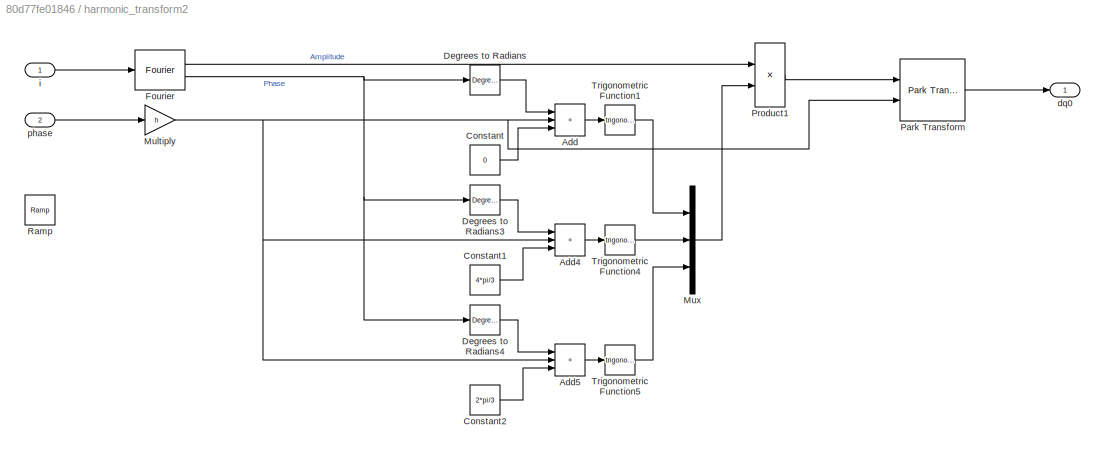
BLOCK [SubSystem] harmonic_transform2
  Ports = [2, 1]
  RequestExecContextInheritance = off
BLOCK [Sum] harmonic_transform2/Add
  IconShape = rectangular
  Inputs = +++
  Ports = [3, 1]
BLOCK [Sum] harmonic_transform2/Add4
  IconShape = rectangular
  Inputs = +++
  Ports = [3, 1]
BLOCK [Sum] harmonic_transform2/Add5
  IconShape = rectangular
  Inputs = +++
  Ports = [3, 1]
BLOCK [Constant] harmonic_transform2/Constant
  Value = 0
BLOCK [Constant] harmonic_transform2/Constant1
  Value = 4*pi/3
BLOCK [Constant] harmonic_transform2/Constant2
  Value = 2*pi/3
BLOCK [Reference] harmonic_transform2/Degrees to Radians  REF=simulink_extras/Transformations/Degrees to
Radians
  Ports = [1, 1]
  SourceBlock = simulink_extras/Transformations/Degrees to\nRadians
  SourceProductBaseCode = SL
  SourceType = DegreesToRadians
BLOCK [Reference] harmonic_transform2/Degrees to Radians3  REF=simulink_extras/Transformations/Degrees to
Radians
  Ports = [1, 1]
  SourceBlock = simulink_extras/Transformations/Degrees to\nRadians
  SourceProductBaseCode = SL
  SourceType = DegreesToRadians
BLOCK [Reference] harmonic_transform2/Degrees to Radians4  REF=simulink_extras/Transformations/Degrees to
Radians
  Ports = [1, 1]
  SourceBlock = simulink_extras/Transformations/Degrees to\nRadians
  SourceProductBaseCode = SL
  SourceType = DegreesToRadians
BLOCK [Reference] harmonic_transform2/Fourier  REF=powerlib_meascontrol/Measurements/Fourier
  Ports = [1, 2]
  SourceBlock = powerlib_meascontrol/Measurements/Fourier
  SourceProductBaseCode = PS
  SourceType = Fourier
BLOCK [Gain] harmonic_transform2/Multiply
  Gain = h
BLOCK [Mux] harmonic_transform2/Mux
  DisplayOption = bar
  Inputs = 3
  Ports = [3, 1]
BLOCK [Reference] harmonic_transform2/Park Transform  REF=eeTransforms/Park Transform
  Ports = [2, 1]
  SourceBlock = eeTransforms/Park Transform
  SourceProductBaseCode = PS
  SourceType = Park Transform
BLOCK [Product] harmonic_transform2/Product1
  Ports = [2, 1]
  RndMeth = Zero
BLOCK [Reference] harmonic_transform2/Ramp  REF=simulink/Sources/Ramp
  Ports = [0, 1]
  SourceBlock = simulink/Sources/Ramp
  SourceProductBaseCode = SL
  SourceType = Ramp
BLOCK [Trigonometry] harmonic_transform2/Trigonometric Function1
  Ports = [1, 1]
BLOCK [Trigonometry] harmonic_transform2/Trigonometric Function4
  Ports = [1, 1]
BLOCK [Trigonometry] harmonic_transform2/Trigonometric Function5
  Ports = [1, 1]
BLOCK [Outport] harmonic_transform2/dq0
BLOCK [Inport] harmonic_transform2/i
BLOCK [Inport] harmonic_transform2/phase
  Port = 2
BLOCK [SubSystem] harmonic_transform3
  Ports = [2, 1]
  RequestExecContextInheritance = off
BLOCK [Sum] harmonic_transform3/Add
  IconShape = rectangular
  Inputs = +++
  Ports = [3, 1]
BLOCK [Sum] harmonic_transform3/Add4
  IconShape = rectangular
  Inputs = +++
  Ports = [3, 1]
BLOCK [Sum] harmonic_transform3/Add5
  IconShape = rectangular
  Inputs = +++
  Ports = [3, 1]
BLOCK [Constant] harmonic_transform3/Constant
  Value = 0
BLOCK [Constant] harmonic_transform3/Constant1
  Value = 4*pi/3
BLOCK [Constant] harmonic_transform3/Constant2
  Value = 2*pi/3
BLOCK [Reference] harmonic_transform3/Degrees to Radians  REF=simulink_extras/Transformations/Degrees to
Radians
  Ports = [1, 1]
  SourceBlock = simulink_extras/Transformations/Degrees to\nRadians
  SourceProductBaseCode = SL
  SourceType = DegreesToRadians
BLOCK [Reference] harmonic_transform3/Degrees to Radians3  REF=simulink_extras/Transformations/Degrees to
Radians
  Ports = [1, 1]
  SourceBlock = simulink_extras/Transformations/Degrees to\nRadians
  SourceProductBaseCode = SL
  SourceType = DegreesToRadians
BLOCK [Reference] harmonic_transform3/Degrees to Radians4  REF=simulink_extras/Transformations/Degrees to
Radians
  Ports = [1, 1]
  SourceBlock = simulink_extras/Transformations/Degrees to\nRadians
  SourceProductBaseCode = SL
  SourceType = DegreesToRadians
BLOCK [Reference] harmonic_transform3/Fourier  REF=powerlib_meascontrol/Measurements/Fourier
  Ports = [1, 2]
  SourceBlock = powerlib_meascontrol/Measurements/Fourier
  SourceProductBaseCode = PS
  SourceType = Fourier
BLOCK [Gain] harmonic_transform3/Multiply
  Gain = h
BLOCK [Mux] harmonic_transform3/Mux
  DisplayOption = bar
  Inputs = 3
  Ports = [3, 1]
BLOCK [Reference] harmonic_transform3/Park Transform  REF=eeTransforms/Park Transform
  Ports = [2, 1]
  SourceBlock = eeTransforms/Park Transform
  SourceProductBaseCode = PS
  SourceType = Park Transform
BLOCK [Product] harmonic_transform3/Product1
  Ports = [2, 1]
  RndMeth = Zero
BLOCK [Reference] harmonic_transform3/Ramp  REF=simulink/Sources/Ramp
  Ports = [0, 1]
  SourceBlock = simulink/Sources/Ramp
  SourceProductBaseCode = SL
  SourceType = Ramp
BLOCK [Trigonometry] harmonic_transform3/Trigonometric Function1
  Ports = [1, 1]
BLOCK [Trigonometry] harmonic_transform3/Trigonometric Function4
  Ports = [1, 1]
BLOCK [Trigonometry] harmonic_transform3/Trigonometric Function5
  Ports = [1, 1]
BLOCK [Outport] harmonic_transform3/dq0
BLOCK [Inport] harmonic_transform3/i
BLOCK [Inport] harmonic_transform3/phase
  Port = 2
BLOCK [SubSystem] harmonic_transform4
  Ports = [2, 1]
  RequestExecContextInheritance = off
BLOCK [Sum] harmonic_transform4/Add
  IconShape = rectangular
  Inputs = +++
  Ports = [3, 1]
BLOCK [Sum] harmonic_transform4/Add4
  IconShape = rectangular
  Inputs = +++
  Ports = [3, 1]
BLOCK [Sum] harmonic_transform4/Add5
  IconShape = rectangular
  Inputs = +++
  Ports = [3, 1]
BLOCK [Constant] harmonic_transform4/Constant
  Value = 0
BLOCK [Constant] harmonic_transform4/Constant1
  Value = 4*pi/3
BLOCK [Constant] harmonic_transform4/Constant2
  Value = 2*pi/3
BLOCK [Reference] harmonic_transform4/Degrees to Radians  REF=simulink_extras/Transformations/Degrees to
Radians
  Ports = [1, 1]
  SourceBlock = simulink_extras/Transformations/Degrees to\nRadians
  SourceProductBaseCode = SL
  SourceType = DegreesToRadians
BLOCK [Reference] harmonic_transform4/Degrees to Radians3  REF=simulink_extras/Transformations/Degrees to
Radians
  Ports = [1, 1]
  SourceBlock = simulink_extras/Transformations/Degrees to\nRadians
  SourceProductBaseCode = SL
  SourceType = DegreesToRadians
BLOCK [Reference] harmonic_transform4/Degrees to Radians4  REF=simulink_extras/Transformations/Degrees to
Radians
  Ports = [1, 1]
  SourceBlock = simulink_extras/Transformations/Degrees to\nRadians
  SourceProductBaseCode = SL
  SourceType = DegreesToRadians
BLOCK [Reference] harmonic_transform4/Fourier  REF=powerlib_meascontrol/Measurements/Fourier
  Ports = [1, 2]
  SourceBlock = powerlib_meascontrol/Measurements/Fourier
  SourceProductBaseCode = PS
  SourceType = Fourier
BLOCK [Gain] harmonic_transform4/Multiply
  Gain = h
BLOCK [Mux] harmonic_transform4/Mux
  DisplayOption = bar
  Inputs = 3
  Ports = [3, 1]
BLOCK [Reference] harmonic_transform4/Park Transform  REF=eeTransforms/Park Transform
  Ports = [2, 1]
  SourceBlock = eeTransforms/Park Transform
  SourceProductBaseCode = PS
  SourceType = Park Transform
BLOCK [Product] harmonic_transform4/Product1
  Ports = [2, 1]
  RndMeth = Zero
BLOCK [Trigonometry] harmonic_transform4/Trigonometric Function1
  Ports = [1, 1]
BLOCK [Trigonometry] harmonic_transform4/Trigonometric Function4
  Ports = [1, 1]
BLOCK [Trigonometry] harmonic_transform4/Trigonometric Function5
  Ports = [1, 1]
BLOCK [Outport] harmonic_transform4/dq0
BLOCK [Inport] harmonic_transform4/i
BLOCK [Inport] harmonic_transform4/phase
  Port = 2
BLOCK [SubSystem] inverse_transform
  Ports = [2, 1]
  RequestExecContextInheritance = off
BLOCK [Demux] inverse_transform/Demux
  Outputs = 3
  Ports = [1, 3]
BLOCK [Gain] inverse_transform/Gain3
  Gain = h
BLOCK [Reference] inverse_transform/Inverse Park Transform1  REF=eeTransforms/Inverse
Park Transform
  Ports = [2, 1]
  SourceBlock = eeTransforms/Inverse\nPark Transform
  SourceProductBaseCode = PS
  SourceType = Inverse Park Transform
BLOCK [Reference] inverse_transform/Ramp  REF=simulink/Sources/Ramp
  Ports = [0, 1]
  SourceBlock = simulink/Sources/Ramp
  SourceProductBaseCode = SL
  SourceType = Ramp
BLOCK [Inport] inverse_transform/dq0
BLOCK [Outport] inverse_transform/m
BLOCK [Inport] inverse_transform/phase
  Port = 2
BLOCK [SubSystem] inverse_transform1
  Ports = [2, 1]
  RequestExecContextInheritance = off
BLOCK [Demux] inverse_transform1/Demux
  Outputs = 3
  Ports = [1, 3]
BLOCK [Gain] inverse_transform1/Gain3
  Gain = h
BLOCK [Reference] inverse_transform1/Inverse Park Transform1  REF=eeTransforms/Inverse
Park Transform
  Ports = [2, 1]
  SourceBlock = eeTransforms/Inverse\nPark Transform
  SourceProductBaseCode = PS
  SourceType = Inverse Park Transform
BLOCK [Reference] inverse_transform1/Ramp  REF=simulink/Sources/Ramp
  Ports = [0, 1]
  SourceBlock = simulink/Sources/Ramp
  SourceProductBaseCode = SL
  SourceType = Ramp
BLOCK [Inport] inverse_transform1/dq0
BLOCK [Outport] inverse_transform1/m
BLOCK [Inport] inverse_transform1/phase
  Port = 2
BLOCK [SubSystem] inverse_transform2
  Ports = [2, 1]
  RequestExecContextInheritance = off
BLOCK [Demux] inverse_transform2/Demux
  Outputs = 3
  Ports = [1, 3]
BLOCK [Gain] inverse_transform2/Gain3
  Gain = h
BLOCK [Reference] inverse_transform2/Inverse Park Transform1  REF=eeTransforms/Inverse
Park Transform
  Ports = [2, 1]
  SourceBlock = eeTransforms/Inverse\nPark Transform
  SourceProductBaseCode = PS
  SourceType = Inverse Park Transform
BLOCK [Reference] inverse_transform2/Ramp  REF=simulink/Sources/Ramp
  Ports = [0, 1]
  SourceBlock = simulink/Sources/Ramp
  SourceProductBaseCode = SL
  SourceType = Ramp
BLOCK [Inport] inverse_transform2/dq0
BLOCK [Outport] inverse_transform2/m
BLOCK [Inport] inverse_transform2/phase
  Port = 2
ANNOTATION (root): 3rd harmonic
ANNOTATION (root): 3rd harmonic compensation
ANNOTATION (root): Combine Frequency Components
ANNOTATION (root): DC power input
ANNOTATION (root): Inverse Park Transformation
ANNOTATION (root): Inverter output current
ANNOTATION (root): PLL
ANNOTATION (root): fundamental
ANNOTATION 3-Phase Half-Bridge: All voltage measurements are referenced to the potential of the neutral connection at PCC
ANNOTATION 3-Phase Half-Bridge: PCC
ANNOTATION 3-Phase Half-Bridge: P_dc_in/2
ANNOTATION 3-Phase Half-Bridge: http://tinyurl.com/y849ae5e
ANNOTATION dq0 compensator1: Decoupling Feed-Forward
ANNOTATION dq0 compensator1: PID Compensator
ANNOTATION dq0 compensator2: Decoupling Feed-Forward
ANNOTATION dq0 compensator2: PID Compensator
ANNOTATION dq0 compensator3: Decoupling Feed-Forward
ANNOTATION dq0 compensator3: PID Compensator
ANNOTATION dq0 compensator4: Decoupling Feed-Forward
ANNOTATION dq0 compensator4: PID Compensator
LINE 3-Phase Half-Bridge/Add1:1 -> 3-Phase Half-Bridge/Divide4:1
LINE 3-Phase Half-Bridge/Add:1 -> 3-Phase Half-Bridge/Divide2:1
LINE 3-Phase Half-Bridge/Constant10:1 -> 3-Phase Half-Bridge/Subtract:2
LINE 3-Phase Half-Bridge/Constant13:1 -> 3-Phase Half-Bridge/Manual Switch6:2
LINE 3-Phase Half-Bridge/Constant14:1 -> 3-Phase Half-Bridge/Switch7:3
LINE 3-Phase Half-Bridge/Constant15:1 -> 3-Phase Half-Bridge/Switch8:3
LINE 3-Phase Half-Bridge/Constant16:1 -> 3-Phase Half-Bridge/Switch9:1
LINE 3-Phase Half-Bridge/Constant17:1 -> 3-Phase Half-Bridge/Switch10:1
LINE 3-Phase Half-Bridge/Constant18:1 -> 3-Phase Half-Bridge/Switch11:1
LINE 3-Phase Half-Bridge/Constant7:1 -> 3-Phase Half-Bridge/Switch6:3
LINE 3-Phase Half-Bridge/Constant8:1 -> 3-Phase Half-Bridge/Divide3:2
LINE 3-Phase Half-Bridge/Constant:1 -> 3-Phase Half-Bridge/Manual Switch:2
LINE 3-Phase Half-Bridge/Current Measurement1:1 -> 3-Phase Half-Bridge/Goto15:1
LINE 3-Phase Half-Bridge/Current Measurement:1 -> 3-Phase Half-Bridge/Goto14:1
LINE 3-Phase Half-Bridge/DC_POWER_IN:1 -> 3-Phase Half-Bridge/Multiply4:1
LINE 3-Phase Half-Bridge/Demux1:1 -> 3-Phase Half-Bridge/Controlled Voltage Source1:1
LINE 3-Phase Half-Bridge/Demux1:2 -> 3-Phase Half-Bridge/Controlled Voltage Source2:1
LINE 3-Phase Half-Bridge/Demux1:3 -> 3-Phase Half-Bridge/Controlled Voltage Source:1
LINE 3-Phase Half-Bridge/Demux5:1 -> 3-Phase Half-Bridge/Divide:1
LINE 3-Phase Half-Bridge/Demux5:2 -> 3-Phase Half-Bridge/Divide1:2
LINE 3-Phase Half-Bridge/Demux6:1 -> 3-Phase Half-Bridge/Transfer Fcn1:1
LINE 3-Phase Half-Bridge/Demux6:2 -> 3-Phase Half-Bridge/Transfer Fcn:1
LINE 3-Phase Half-Bridge/Demux6:3 -> 3-Phase Half-Bridge/Transfer Fcn2:1
NET 3-Phase Half-Bridge/Divide1:1 -> 3-Phase Half-Bridge/Controlled Current Source9:1, 3-Phase Half-Bridge/Goto16:1
LINE 3-Phase Half-Bridge/Divide2:1 -> 3-Phase Half-Bridge/Gain:1
LINE 3-Phase Half-Bridge/Divide3:1 -> 3-Phase Half-Bridge/Sum1:2
LINE 3-Phase Half-Bridge/Divide4:1 -> 3-Phase Half-Bridge/Gain1:1
NET 3-Phase Half-Bridge/Divide:1 -> 3-Phase Half-Bridge/Controlled Current Source:1, 3-Phase Half-Bridge/Goto17:1
LINE 3-Phase Half-Bridge/From10:1 -> 3-Phase Half-Bridge/Controlled Current Source3:1
LINE 3-Phase Half-Bridge/From11:1 -> 3-Phase Half-Bridge/Multiply5:1
LINE 3-Phase Half-Bridge/From12:1 -> 3-Phase Half-Bridge/Multiply5:2
LINE 3-Phase Half-Bridge/From13:1 -> 3-Phase Half-Bridge/Multiply7:1
LINE 3-Phase Half-Bridge/From14:1 -> 3-Phase Half-Bridge/Multiply7:2
LINE 3-Phase Half-Bridge/From15:1 -> 3-Phase Half-Bridge/Multiply8:1
LINE 3-Phase Half-Bridge/From16:1 -> 3-Phase Half-Bridge/Multiply8:2
LINE 3-Phase Half-Bridge/From17:1 -> 3-Phase Half-Bridge/Divide2:2
LINE 3-Phase Half-Bridge/From18:1 -> 3-Phase Half-Bridge/Multiply9:1
LINE 3-Phase Half-Bridge/From19:1 -> 3-Phase Half-Bridge/Multiply9:2
LINE 3-Phase Half-Bridge/From1:1 -> 3-Phase Half-Bridge/Subtract2:1
LINE 3-Phase Half-Bridge/From20:1 -> 3-Phase Half-Bridge/Multiply10:1
LINE 3-Phase Half-Bridge/From21:1 -> 3-Phase Half-Bridge/Multiply10:2
LINE 3-Phase Half-Bridge/From22:1 -> 3-Phase Half-Bridge/Multiply11:1
LINE 3-Phase Half-Bridge/From23:1 -> 3-Phase Half-Bridge/Multiply11:2
LINE 3-Phase Half-Bridge/From24:1 -> 3-Phase Half-Bridge/Divide4:2
LINE 3-Phase Half-Bridge/From25:1 -> 3-Phase Half-Bridge/RMS:1
LINE 3-Phase Half-Bridge/From26:1 -> 3-Phase Half-Bridge/RMS1:1
LINE 3-Phase Half-Bridge/From27:1 -> 3-Phase Half-Bridge/Subtract2:2
LINE 3-Phase Half-Bridge/From28:1 -> 3-Phase Half-Bridge/Subtract3:1
LINE 3-Phase Half-Bridge/From29:1 -> 3-Phase Half-Bridge/Subtract3:2
LINE 3-Phase Half-Bridge/From2:1 -> 3-Phase Half-Bridge/Subtract1:1
LINE 3-Phase Half-Bridge/From30:1 -> 3-Phase Half-Bridge/Multiply:1
LINE 3-Phase Half-Bridge/From32:1 -> 3-Phase Half-Bridge/Multiply:2
LINE 3-Phase Half-Bridge/From33:1 -> 3-Phase Half-Bridge/Multiply1:1
LINE 3-Phase Half-Bridge/From34:1 -> 3-Phase Half-Bridge/Multiply1:2
LINE 3-Phase Half-Bridge/From3:1 -> 3-Phase Half-Bridge/Subtract1:2
LINE 3-Phase Half-Bridge/From4:1 -> 3-Phase Half-Bridge/Sum1:1
LINE 3-Phase Half-Bridge/From5:1 -> 3-Phase Half-Bridge/Controlled Current Source4:1
LINE 3-Phase Half-Bridge/From6:1 -> 3-Phase Half-Bridge/Controlled Current Source5:1
LINE 3-Phase Half-Bridge/From7:1 -> 3-Phase Half-Bridge/Controlled Current Source6:1
LINE 3-Phase Half-Bridge/From8:1 -> 3-Phase Half-Bridge/Controlled Current Source1:1
LINE 3-Phase Half-Bridge/From9:1 -> 3-Phase Half-Bridge/Controlled Current Source2:1
LINE 3-Phase Half-Bridge/Gain1:1 -> 3-Phase Half-Bridge/Controlled Current Source8:1
LINE 3-Phase Half-Bridge/Gain2:1 -> 3-Phase Half-Bridge/Multiply15:2
LINE 3-Phase Half-Bridge/Gain:1 -> 3-Phase Half-Bridge/Controlled Current Source7:1
LINE 3-Phase Half-Bridge/Manual Switch6:1 -> 3-Phase Half-Bridge/Multiply4:2
NET 3-Phase Half-Bridge/Manual Switch:1 -> 3-Phase Half-Bridge/Gain2:1, 3-Phase Half-Bridge/VDC:1
LINE 3-Phase Half-Bridge/Multiply10:1 -> 3-Phase Half-Bridge/Add1:2
LINE 3-Phase Half-Bridge/Multiply11:1 -> 3-Phase Half-Bridge/Add1:3
LINE 3-Phase Half-Bridge/Multiply15:1 -> 3-Phase Half-Bridge/Demux6:1
LINE 3-Phase Half-Bridge/Multiply1:1 -> 3-Phase Half-Bridge/Subtract4:2
LINE 3-Phase Half-Bridge/Multiply4:1 -> 3-Phase Half-Bridge/Demux5:1
LINE 3-Phase Half-Bridge/Multiply5:1 -> 3-Phase Half-Bridge/Add:1
LINE 3-Phase Half-Bridge/Multiply7:1 -> 3-Phase Half-Bridge/Add:2
LINE 3-Phase Half-Bridge/Multiply8:1 -> 3-Phase Half-Bridge/Add:3
LINE 3-Phase Half-Bridge/Multiply9:1 -> 3-Phase Half-Bridge/Add1:1
LINE 3-Phase Half-Bridge/Multiply:1 -> 3-Phase Half-Bridge/Subtract4:1
LINE 3-Phase Half-Bridge/Mux5:1 -> 3-Phase Half-Bridge/Manual Switch6:1
NET 3-Phase Half-Bridge/PID Controller:1 -> 3-Phase Half-Bridge/Mux5:1, 3-Phase Half-Bridge/Subtract:1
LINE 3-Phase Half-Bridge/Step:1 -> 3-Phase Half-Bridge/Ideal Switch:1
LINE 3-Phase Half-Bridge/Subtract1:1 -> 3-Phase Half-Bridge/Divide3:1
LINE 3-Phase Half-Bridge/Subtract2:1 -> 3-Phase Half-Bridge/IDC:1
LINE 3-Phase Half-Bridge/Subtract3:1 -> 3-Phase Half-Bridge/Manual Switch:1
LINE 3-Phase Half-Bridge/Subtract4:1 -> 3-Phase Half-Bridge/PDC:1
LINE 3-Phase Half-Bridge/Subtract:1 -> 3-Phase Half-Bridge/Mux5:2
LINE 3-Phase Half-Bridge/Sum1:1 -> 3-Phase Half-Bridge/PID Controller:1
LINE 3-Phase Half-Bridge/Switch10:1 -> 3-Phase Half-Bridge/Goto6:1
LINE 3-Phase Half-Bridge/Switch11:1 -> 3-Phase Half-Bridge/Goto7:1
LINE 3-Phase Half-Bridge/Switch6:1 -> 3-Phase Half-Bridge/Goto:1
LINE 3-Phase Half-Bridge/Switch7:1 -> 3-Phase Half-Bridge/Goto3:1
LINE 3-Phase Half-Bridge/Switch8:1 -> 3-Phase Half-Bridge/Goto4:1
LINE 3-Phase Half-Bridge/Switch9:1 -> 3-Phase Half-Bridge/Goto5:1
LINE 3-Phase Half-Bridge/Three-Phase V-I Measurement:1 -> 3-Phase Half-Bridge/U_PCC:1
LINE 3-Phase Half-Bridge/Three-Phase V-I Measurement:2 -> 3-Phase Half-Bridge/I_PCC:1
NET 3-Phase Half-Bridge/Transfer Fcn1:1 -> 3-Phase Half-Bridge/Switch6:1, 3-Phase Half-Bridge/Switch6:2, 3-Phase Half-Bridge/Switch9:2, 3-Phase Half-Bridge/Switch9:3
NET 3-Phase Half-Bridge/Transfer Fcn2:1 -> 3-Phase Half-Bridge/Switch11:2, 3-Phase Half-Bridge/Switch11:3, 3-Phase Half-Bridge/Switch8:1, 3-Phase Half-Bridge/Switch8:2
NET 3-Phase Half-Bridge/Transfer Fcn:1 -> 3-Phase Half-Bridge/Switch10:2, 3-Phase Half-Bridge/Switch10:3, 3-Phase Half-Bridge/Switch7:1, 3-Phase Half-Bridge/Switch7:2
NET 3-Phase Half-Bridge/Voltage Measurement1:1 -> 3-Phase Half-Bridge/Divide1:1, 3-Phase Half-Bridge/Goto1:1
LINE 3-Phase Half-Bridge/Voltage Measurement2:1 -> 3-Phase Half-Bridge/Goto9:1
LINE 3-Phase Half-Bridge/Voltage Measurement3:1 -> 3-Phase Half-Bridge/Goto8:1
LINE 3-Phase Half-Bridge/Voltage Measurement4:1 -> 3-Phase Half-Bridge/Goto10:1
LINE 3-Phase Half-Bridge/Voltage Measurement5:1 -> 3-Phase Half-Bridge/Goto11:1
LINE 3-Phase Half-Bridge/Voltage Measurement6:1 -> 3-Phase Half-Bridge/Goto12:1
LINE 3-Phase Half-Bridge/Voltage Measurement7:1 -> 3-Phase Half-Bridge/Goto13:1
NET 3-Phase Half-Bridge/Voltage Measurement:1 -> 3-Phase Half-Bridge/Divide:2, 3-Phase Half-Bridge/Goto2:1
LINE 3-Phase Half-Bridge/grid:1 -> 3-Phase Half-Bridge/Demux1:1
LINE 3-Phase Half-Bridge/modulation_in:1 -> 3-Phase Half-Bridge/Multiply15:1
LINE 3-Phase Half-Bridge:1 -> Goto2:1
LINE 3-Phase Half-Bridge:2 -> Goto3:1
LINE 3-Phase Half-Bridge:3 -> Goto4:1
LINE 3-Phase Half-Bridge:4 -> Goto5:1
LINE 3-Phase Half-Bridge:5 -> Goto6:1
LINE Add3:1 -> Divide14:1
NET Add:1 -> 3-Phase Half-Bridge:3, THD2:1
LINE Constant10:1 -> dq0 compensator1:2
LINE Constant11:1 -> Divide8:2
LINE Constant12:1 -> Multiply7:1
LINE Constant13:1 -> Divide11:2
LINE Constant14:1 -> Mux4:3
LINE Constant1:1 -> dq0 compensator2:2
LINE Constant2:1 -> Divide:2
LINE Constant3:1 -> dq0 compensator3:2
LINE Constant4:1 -> Divide2:2
LINE Constant5:1 -> Multiply:1
LINE Constant6:1 -> Divide4:2
LINE Constant7:1 -> Multiply2:1
LINE Constant9:1 -> Multiply1:1
LINE Demux2:1 -> Mux:2
LINE Demux3:1 -> harmonic_transform4:1
LINE Demux3:2 -> harmonic_transform2:1
LINE Demux3:3 -> harmonic_transform3:1
LINE Demux5:1 -> Mux:3
NET Demux8:1 -> Fourier3:1, PLL:1
LINE Demux:1 -> Mux:1
LINE Divide11:1 -> Divide14:2
LINE Divide14:1 -> Saturation1:1
LINE Divide1:1 -> Mux4:1
LINE Divide5:1 -> Mux4:2
LINE Fourier3:1 -> Goto:1
NET From10:1 -> Demux8:1, PLL (3ph)1:1
LINE From11:1 -> harmonic_transform2:2
LINE From12:1 -> inverse_transform:2
LINE From13:1 -> Demux3:1
LINE From14:1 -> Park Transform1:2
LINE From15:1 -> Gain1:1
LINE From16:1 -> Gain4:1
LINE From17:1 -> Gain2:1
LINE From18:1 -> harmonic_transform3:2
LINE From19:1 -> inverse_transform1:2
LINE From20:1 -> harmonic_transform4:2
LINE From21:1 -> inverse_transform2:2
LINE From22:1 -> RMS:1
LINE From23:1 -> RMS1:1
NET From2:1 -> Divide1:2, Divide5:2
LINE From30:1 -> Park Transform1:1
LINE From3:1 -> THD1:1
LINE From4:1 -> Power:2
LINE From5:1 -> Power:1
LINE From6:1 -> Power Measurement:2
LINE From7:1 -> Divide11:1
LINE From8:1 -> Power Measurement:1
LINE From9:1 -> Inverse Park Transform1:2
LINE From:1 -> THD:1
LINE Inverse Park Transform1:1 -> Add3:2
LINE Manual Switch1:1 -> dq0 compensator4:2
LINE Manual Switch2:1 -> Add3:1
LINE Manual Switch3:1 -> Add:3
LINE Manual Switch4:1 -> Sum4:2
LINE Manual Switch:1 -> Goto1:1
LINE Multiply1:1 -> Divide1:1
LINE Multiply2:1 -> Multiply7:2
LINE Multiply7:1 -> Divide5:1
LINE Multiply:1 -> Multiply1:2
LINE Mux1:1 -> Manual Switch2:1
LINE Mux4:1 -> Manual Switch1:1
LINE Mux:1 -> Product:1
LINE PLL (3ph)1:2 -> Manual Switch:2
LINE PLL:2 -> Manual Switch:1
LINE Park Transform1:1 -> dq0 compensator4:1
LINE Power Measurement/Add1:1 -> Power Measurement/Q_out:1
LINE Power Measurement/Add:1 -> Power Measurement/P_out:1
LINE Power Measurement/Demux3:1 -> Power Measurement/Power:2
LINE Power Measurement/Demux3:2 -> Power Measurement/Power1:2
LINE Power Measurement/Demux3:3 -> Power Measurement/Power2:2
LINE Power Measurement/Demux:1 -> Power Measurement/Power:1
LINE Power Measurement/Demux:2 -> Power Measurement/Power1:1
LINE Power Measurement/Demux:3 -> Power Measurement/Power2:1
LINE Power Measurement/Power1:1 -> Power Measurement/Add:2
LINE Power Measurement/Power1:2 -> Power Measurement/Add1:2
LINE Power Measurement/Power2:1 -> Power Measurement/Add:3
LINE Power Measurement/Power2:2 -> Power Measurement/Add1:3
LINE Power Measurement/Power:1 -> Power Measurement/Add:1
LINE Power Measurement/Power:2 -> Power Measurement/Add1:1
LINE Power Measurement/iabc_in:1 -> Power Measurement/Demux3:1
LINE Power Measurement/uabc_in:1 -> Power Measurement/Demux:1
LINE Power Measurement:1 -> Divide:1
LINE Power Measurement:2 -> Divide2:1
LINE Power:1 -> Divide8:1
LINE Power:2 -> Divide4:1
LINE Product:1 -> Manual Switch3:1
LINE Saturation1:1 -> 3-Phase Half-Bridge:1
LINE Step2:1 -> 3-Phase Half-Bridge:2
LINE Step4:1 -> Sum1:2
LINE Step5:1 -> Manual Switch4:2
LINE Step:1 -> Product:2
LINE Sum1:1 -> Multiply:2
LINE Sum4:1 -> Multiply2:2
LINE THD1:1 -> Gain8:1
LINE THD2:1 -> Gain10:1
LINE THD:1 -> Gain9:1
LINE Three-Phase Programmable Generator1:1 -> Demux:1
LINE Three-Phase Programmable Generator2:1 -> Demux2:1
LINE Three-Phase Programmable Generator3:1 -> Demux5:1
LINE Three-Phase Programmable Generator:1 -> Add:1
NET dq0 compensator1/Demux3:1 -> dq0 compensator1/PID Controller2:1, dq0 compensator1/Sum13:1
NET dq0 compensator1/Demux3:2 -> dq0 compensator1/PID Controller3:1, dq0 compensator1/Sum14:1
LINE dq0 compensator1/Demux3:3 -> dq0 compensator1/Sum8:1
LINE dq0 compensator1/Demux4:1 -> dq0 compensator1/Sum13:2
LINE dq0 compensator1/Demux4:2 -> dq0 compensator1/Sum14:2
LINE dq0 compensator1/Demux4:3 -> dq0 compensator1/Sum8:2
LINE dq0 compensator1/Mux2:1 -> dq0 compensator1/dq0 output:1
LINE dq0 compensator1/PID Controller1:1 -> dq0 compensator1/Sum2:2
LINE dq0 compensator1/PID Controller2:1 -> dq0 compensator1/Sum2:1
LINE dq0 compensator1/PID Controller3:1 -> dq0 compensator1/Sum:1
LINE dq0 compensator1/PID Controller5:1 -> dq0 compensator1/Mux2:3
LINE dq0 compensator1/PID Controller:1 -> dq0 compensator1/Sum:2
LINE dq0 compensator1/Sum13:1 -> dq0 compensator1/PID Controller:1
LINE dq0 compensator1/Sum14:1 -> dq0 compensator1/PID Controller1:1
LINE dq0 compensator1/Sum2:1 -> dq0 compensator1/Mux2:2
LINE dq0 compensator1/Sum8:1 -> dq0 compensator1/PID Controller5:1
LINE dq0 compensator1/Sum:1 -> dq0 compensator1/Mux2:1
LINE dq0 compensator1/dq0 feeback:1 -> dq0 compensator1/Demux3:1
LINE dq0 compensator1/dq0 ref:1 -> dq0 compensator1/Demux4:1
LINE dq0 compensator1:1 -> inverse_transform:1
NET dq0 compensator2/Demux3:1 -> dq0 compensator2/PID Controller2:1, dq0 compensator2/Sum13:1
NET dq0 compensator2/Demux3:2 -> dq0 compensator2/PID Controller3:1, dq0 compensator2/Sum14:1
LINE dq0 compensator2/Demux3:3 -> dq0 compensator2/Sum8:1
LINE dq0 compensator2/Demux4:1 -> dq0 compensator2/Sum13:2
LINE dq0 compensator2/Demux4:2 -> dq0 compensator2/Sum14:2
LINE dq0 compensator2/Demux4:3 -> dq0 compensator2/Sum8:2
LINE dq0 compensator2/Mux2:1 -> dq0 compensator2/dq0 output:1
LINE dq0 compensator2/PID Controller1:1 -> dq0 compensator2/Sum2:2
LINE dq0 compensator2/PID Controller2:1 -> dq0 compensator2/Sum2:1
LINE dq0 compensator2/PID Controller3:1 -> dq0 compensator2/Sum:1
LINE dq0 compensator2/PID Controller5:1 -> dq0 compensator2/Mux2:3
LINE dq0 compensator2/PID Controller:1 -> dq0 compensator2/Sum:2
LINE dq0 compensator2/Sum13:1 -> dq0 compensator2/PID Controller:1
LINE dq0 compensator2/Sum14:1 -> dq0 compensator2/PID Controller1:1
LINE dq0 compensator2/Sum2:1 -> dq0 compensator2/Mux2:2
LINE dq0 compensator2/Sum8:1 -> dq0 compensator2/PID Controller5:1
LINE dq0 compensator2/Sum:1 -> dq0 compensator2/Mux2:1
LINE dq0 compensator2/dq0 feeback:1 -> dq0 compensator2/Demux3:1
LINE dq0 compensator2/dq0 ref:1 -> dq0 compensator2/Demux4:1
LINE dq0 compensator2:1 -> inverse_transform1:1
NET dq0 compensator3/Demux3:1 -> dq0 compensator3/PID Controller2:1, dq0 compensator3/Sum13:1
NET dq0 compensator3/Demux3:2 -> dq0 compensator3/PID Controller3:1, dq0 compensator3/Sum14:1
LINE dq0 compensator3/Demux3:3 -> dq0 compensator3/Sum8:1
LINE dq0 compensator3/Demux4:1 -> dq0 compensator3/Sum13:2
LINE dq0 compensator3/Demux4:2 -> dq0 compensator3/Sum14:2
LINE dq0 compensator3/Demux4:3 -> dq0 compensator3/Sum8:2
LINE dq0 compensator3/Mux2:1 -> dq0 compensator3/dq0 output:1
LINE dq0 compensator3/PID Controller1:1 -> dq0 compensator3/Sum2:2
LINE dq0 compensator3/PID Controller2:1 -> dq0 compensator3/Sum2:1
LINE dq0 compensator3/PID Controller3:1 -> dq0 compensator3/Sum:1
LINE dq0 compensator3/PID Controller5:1 -> dq0 compensator3/Mux2:3
LINE dq0 compensator3/PID Controller:1 -> dq0 compensator3/Sum:2
LINE dq0 compensator3/Sum13:1 -> dq0 compensator3/PID Controller:1
LINE dq0 compensator3/Sum14:1 -> dq0 compensator3/PID Controller1:1
LINE dq0 compensator3/Sum2:1 -> dq0 compensator3/Mux2:2
LINE dq0 compensator3/Sum8:1 -> dq0 compensator3/PID Controller5:1
LINE dq0 compensator3/Sum:1 -> dq0 compensator3/Mux2:1
LINE dq0 compensator3/dq0 feeback:1 -> dq0 compensator3/Demux3:1
LINE dq0 compensator3/dq0 ref:1 -> dq0 compensator3/Demux4:1
LINE dq0 compensator3:1 -> inverse_transform2:1
NET dq0 compensator4/Demux3:1 -> dq0 compensator4/PID Controller2:1, dq0 compensator4/Sum13:1
NET dq0 compensator4/Demux3:2 -> dq0 compensator4/PID Controller3:1, dq0 compensator4/Sum14:1
LINE dq0 compensator4/Demux3:3 -> dq0 compensator4/Sum8:1
LINE dq0 compensator4/Demux4:1 -> dq0 compensator4/Sum13:2
LINE dq0 compensator4/Demux4:2 -> dq0 compensator4/Sum14:2
LINE dq0 compensator4/Demux4:3 -> dq0 compensator4/Sum8:2
LINE dq0 compensator4/Mux2:1 -> dq0 compensator4/dq0 output:1
LINE dq0 compensator4/PID Controller1:1 -> dq0 compensator4/Sum2:2
LINE dq0 compensator4/PID Controller2:1 -> dq0 compensator4/Sum2:1
LINE dq0 compensator4/PID Controller3:1 -> dq0 compensator4/Sum:1
LINE dq0 compensator4/PID Controller5:1 -> dq0 compensator4/Mux2:3
LINE dq0 compensator4/PID Controller:1 -> dq0 compensator4/Sum:2
LINE dq0 compensator4/Sum13:1 -> dq0 compensator4/PID Controller:1
LINE dq0 compensator4/Sum14:1 -> dq0 compensator4/PID Controller1:1
LINE dq0 compensator4/Sum2:1 -> dq0 compensator4/Mux2:2
LINE dq0 compensator4/Sum8:1 -> dq0 compensator4/PID Controller5:1
LINE dq0 compensator4/Sum:1 -> dq0 compensator4/Mux2:1
LINE dq0 compensator4/dq0 feeback:1 -> dq0 compensator4/Demux3:1
LINE dq0 compensator4/dq0 ref:1 -> dq0 compensator4/Demux4:1
LINE dq0 compensator4:1 -> Inverse Park Transform1:1
LINE harmonic_transform2/Add4:1 -> harmonic_transform2/Trigonometric Function4:1
LINE harmonic_transform2/Add5:1 -> harmonic_transform2/Trigonometric Function5:1
LINE harmonic_transform2/Add:1 -> harmonic_transform2/Trigonometric Function1:1
LINE harmonic_transform2/Constant1:1 -> harmonic_transform2/Add4:3
LINE harmonic_transform2/Constant2:1 -> harmonic_transform2/Add5:3
LINE harmonic_transform2/Constant:1 -> harmonic_transform2/Add:3
LINE harmonic_transform2/Degrees to Radians3:1 -> harmonic_transform2/Add4:1
LINE harmonic_transform2/Degrees to Radians4:1 -> harmonic_transform2/Add5:1
LINE harmonic_transform2/Degrees to Radians:1 -> harmonic_transform2/Add:1
LINE harmonic_transform2/Fourier:1 -> harmonic_transform2/Product1:1
NET harmonic_transform2/Fourier:2 -> harmonic_transform2/Degrees to Radians3:1, harmonic_transform2/Degrees to Radians4:1, harmonic_transform2/Degrees to Radians:1
NET harmonic_transform2/Multiply:1 -> harmonic_transform2/Add4:2, harmonic_transform2/Add5:2, harmonic_transform2/Add:2, harmonic_transform2/Park Transform:2
LINE harmonic_transform2/Mux:1 -> harmonic_transform2/Product1:2
LINE harmonic_transform2/Park Transform:1 -> harmonic_transform2/dq0:1
LINE harmonic_transform2/Product1:1 -> harmonic_transform2/Park Transform:1
LINE harmonic_transform2/Trigonometric Function1:1 -> harmonic_transform2/Mux:1
LINE harmonic_transform2/Trigonometric Function4:1 -> harmonic_transform2/Mux:2
LINE harmonic_transform2/Trigonometric Function5:1 -> harmonic_transform2/Mux:3
LINE harmonic_transform2/i:1 -> harmonic_transform2/Fourier:1
LINE harmonic_transform2/phase:1 -> harmonic_transform2/Multiply:1
LINE harmonic_transform2:1 -> dq0 compensator1:1
LINE harmonic_transform3/Add4:1 -> harmonic_transform3/Trigonometric Function4:1
LINE harmonic_transform3/Add5:1 -> harmonic_transform3/Trigonometric Function5:1
LINE harmonic_transform3/Add:1 -> harmonic_transform3/Trigonometric Function1:1
LINE harmonic_transform3/Constant1:1 -> harmonic_transform3/Add4:3
LINE harmonic_transform3/Constant2:1 -> harmonic_transform3/Add5:3
LINE harmonic_transform3/Constant:1 -> harmonic_transform3/Add:3
LINE harmonic_transform3/Degrees to Radians3:1 -> harmonic_transform3/Add4:1
LINE harmonic_transform3/Degrees to Radians4:1 -> harmonic_transform3/Add5:1
LINE harmonic_transform3/Degrees to Radians:1 -> harmonic_transform3/Add:1
LINE harmonic_transform3/Fourier:1 -> harmonic_transform3/Product1:1
NET harmonic_transform3/Fourier:2 -> harmonic_transform3/Degrees to Radians3:1, harmonic_transform3/Degrees to Radians4:1, harmonic_transform3/Degrees to Radians:1
NET harmonic_transform3/Multiply:1 -> harmonic_transform3/Add4:2, harmonic_transform3/Add5:2, harmonic_transform3/Add:2, harmonic_transform3/Park Transform:2
LINE harmonic_transform3/Mux:1 -> harmonic_transform3/Product1:2
LINE harmonic_transform3/Park Transform:1 -> harmonic_transform3/dq0:1
LINE harmonic_transform3/Product1:1 -> harmonic_transform3/Park Transform:1
LINE harmonic_transform3/Trigonometric Function1:1 -> harmonic_transform3/Mux:1
LINE harmonic_transform3/Trigonometric Function4:1 -> harmonic_transform3/Mux:2
LINE harmonic_transform3/Trigonometric Function5:1 -> harmonic_transform3/Mux:3
LINE harmonic_transform3/i:1 -> harmonic_transform3/Fourier:1
LINE harmonic_transform3/phase:1 -> harmonic_transform3/Multiply:1
LINE harmonic_transform3:1 -> dq0 compensator2:1
LINE harmonic_transform4/Add4:1 -> harmonic_transform4/Trigonometric Function4:1
LINE harmonic_transform4/Add5:1 -> harmonic_transform4/Trigonometric Function5:1
LINE harmonic_transform4/Add:1 -> harmonic_transform4/Trigonometric Function1:1
LINE harmonic_transform4/Constant1:1 -> harmonic_transform4/Add4:3
LINE harmonic_transform4/Constant2:1 -> harmonic_transform4/Add5:3
LINE harmonic_transform4/Constant:1 -> harmonic_transform4/Add:3
LINE harmonic_transform4/Degrees to Radians3:1 -> harmonic_transform4/Add4:1
LINE harmonic_transform4/Degrees to Radians4:1 -> harmonic_transform4/Add5:1
LINE harmonic_transform4/Degrees to Radians:1 -> harmonic_transform4/Add:1
LINE harmonic_transform4/Fourier:1 -> harmonic_transform4/Product1:1
NET harmonic_transform4/Fourier:2 -> harmonic_transform4/Degrees to Radians3:1, harmonic_transform4/Degrees to Radians4:1, harmonic_transform4/Degrees to Radians:1
NET harmonic_transform4/Multiply:1 -> harmonic_transform4/Add4:2, harmonic_transform4/Add5:2, harmonic_transform4/Add:2, harmonic_transform4/Park Transform:2
LINE harmonic_transform4/Mux:1 -> harmonic_transform4/Product1:2
LINE harmonic_transform4/Park Transform:1 -> harmonic_transform4/dq0:1
LINE harmonic_transform4/Product1:1 -> harmonic_transform4/Park Transform:1
LINE harmonic_transform4/Trigonometric Function1:1 -> harmonic_transform4/Mux:1
LINE harmonic_transform4/Trigonometric Function4:1 -> harmonic_transform4/Mux:2
LINE harmonic_transform4/Trigonometric Function5:1 -> harmonic_transform4/Mux:3
LINE harmonic_transform4/i:1 -> harmonic_transform4/Fourier:1
LINE harmonic_transform4/phase:1 -> harmonic_transform4/Multiply:1
LINE harmonic_transform4:1 -> dq0 compensator3:1
LINE inverse_transform/Demux:1 -> inverse_transform/m:1
LINE inverse_transform/Gain3:1 -> inverse_transform/Inverse Park Transform1:2
LINE inverse_transform/Inverse Park Transform1:1 -> inverse_transform/Demux:1
LINE inverse_transform/dq0:1 -> inverse_transform/Inverse Park Transform1:1
LINE inverse_transform/phase:1 -> inverse_transform/Gain3:1
LINE inverse_transform1/Demux:1 -> inverse_transform1/m:1
LINE inverse_transform1/Gain3:1 -> inverse_transform1/Inverse Park Transform1:2
LINE inverse_transform1/Inverse Park Transform1:1 -> inverse_transform1/Demux:1
LINE inverse_transform1/dq0:1 -> inverse_transform1/Inverse Park Transform1:1
LINE inverse_transform1/phase:1 -> inverse_transform1/Gain3:1
LINE inverse_transform1:1 -> Mux1:3
LINE inverse_transform2/Demux:1 -> inverse_transform2/m:1
LINE inverse_transform2/Gain3:1 -> inverse_transform2/Inverse Park Transform1:2
LINE inverse_transform2/Inverse Park Transform1:1 -> inverse_transform2/Demux:1
LINE inverse_transform2/dq0:1 -> inverse_transform2/Inverse Park Transform1:1
LINE inverse_transform2/phase:1 -> inverse_transform2/Gain3:1
LINE inverse_transform2:1 -> Mux1:1
LINE inverse_transform:1 -> Mux1:2
PNET net1: 3-Phase Half-Bridge/Controlled Current Source1:LConn1 -- 3-Phase Half-Bridge/Ground4:LConn1 -- 3-Phase Half-Bridge/Series RLC Branch3:RConn1 -- 3-Phase Half-Bridge/Voltage Measurement5:LConn1
PNET net2: 3-Phase Half-Bridge/Controlled Current Source1:RConn1 -- 3-Phase Half-Bridge/Controlled Current Source4:RConn1 -- 3-Phase Half-Bridge/Series RLC Branch3:LConn1 -- 3-Phase Half-Bridge/Series RLC Branch6:RConn1 -- 3-Phase Half-Bridge/Three-Phase Series RLC Branch1:LConn1 -- 3-Phase Half-Bridge/Voltage Measurement2:LConn2 -- 3-Phase Half-Bridge/Voltage Measurement5:LConn2
PNET net3: 3-Phase Half-Bridge/Controlled Current Source2:LConn1 -- 3-Phase Half-Bridge/Ground6:LConn1 -- 3-Phase Half-Bridge/Series RLC Branch4:RConn1 -- 3-Phase Half-Bridge/Voltage Measurement6:LConn1
PNET net4: 3-Phase Half-Bridge/Controlled Current Source2:RConn1 -- 3-Phase Half-Bridge/Controlled Current Source5:RConn1 -- 3-Phase Half-Bridge/Series RLC Branch4:LConn1 -- 3-Phase Half-Bridge/Series RLC Branch7:RConn1 -- 3-Phase Half-Bridge/Three-Phase Series RLC Branch1:LConn2 -- 3-Phase Half-Bridge/Voltage Measurement3:LConn2 -- 3-Phase Half-Bridge/Voltage Measurement6:LConn2
PNET net5: 3-Phase Half-Bridge/Controlled Current Source3:LConn1 -- 3-Phase Half-Bridge/Ground7:LConn1 -- 3-Phase Half-Bridge/Series RLC Branch5:RConn1 -- 3-Phase Half-Bridge/Voltage Measurement7:LConn1
PNET net6: 3-Phase Half-Bridge/Controlled Current Source3:RConn1 -- 3-Phase Half-Bridge/Controlled Current Source6:RConn1 -- 3-Phase Half-Bridge/Series RLC Branch5:LConn1 -- 3-Phase Half-Bridge/Series RLC Branch8:RConn1 -- 3-Phase Half-Bridge/Three-Phase Series RLC Branch1:LConn3 -- 3-Phase Half-Bridge/Voltage Measurement4:LConn2 -- 3-Phase Half-Bridge/Voltage Measurement7:LConn2
PNET net7: 3-Phase Half-Bridge/Controlled Current Source4:LConn1 -- 3-Phase Half-Bridge/Ground3:LConn1 -- 3-Phase Half-Bridge/Series RLC Branch6:LConn1 -- 3-Phase Half-Bridge/Voltage Measurement2:LConn1
PNET net8: 3-Phase Half-Bridge/Controlled Current Source5:LConn1 -- 3-Phase Half-Bridge/Ground8:LConn1 -- 3-Phase Half-Bridge/Series RLC Branch7:LConn1 -- 3-Phase Half-Bridge/Voltage Measurement3:LConn1
PNET net9: 3-Phase Half-Bridge/Controlled Current Source6:LConn1 -- 3-Phase Half-Bridge/Ground9:LConn1 -- 3-Phase Half-Bridge/Series RLC Branch8:LConn1 -- 3-Phase Half-Bridge/Voltage Measurement4:LConn1
PNET net10: 3-Phase Half-Bridge/Controlled Current Source7:LConn1 -- 3-Phase Half-Bridge/Current Measurement:LConn1 -- 3-Phase Half-Bridge/Series RLC Branch2:LConn1 -- 3-Phase Half-Bridge/Voltage Measurement:LConn1
PNET net11: 3-Phase Half-Bridge/Controlled Current Source7:RConn1 -- 3-Phase Half-Bridge/Controlled Current Source8:RConn1 -- 3-Phase Half-Bridge/Controlled Current Source9:LConn1 -- 3-Phase Half-Bridge/Controlled Current Source:LConn1 -- 3-Phase Half-Bridge/Ground1:LConn1 -- 3-Phase Half-Bridge/Series RLC Branch1:LConn1 -- 3-Phase Half-Bridge/Series RLC Branch:RConn1 -- 3-Phase Half-Bridge/Voltage Measurement1:LConn2 -- 3-Phase Half-Bridge/Voltage Measurement:LConn2
PNET net12: 3-Phase Half-Bridge/Controlled Current Source8:LConn1 -- 3-Phase Half-Bridge/Current Measurement1:LConn1 -- 3-Phase Half-Bridge/Series RLC Branch9:LConn1 -- 3-Phase Half-Bridge/Voltage Measurement1:LConn1
PLINE 3-Phase Half-Bridge/Controlled Current Source9:RConn1 -- 3-Phase Half-Bridge/Series RLC Branch9:RConn1
PLINE 3-Phase Half-Bridge/Controlled Current Source:RConn1 -- 3-Phase Half-Bridge/Series RLC Branch2:RConn1
PNET net13: 3-Phase Half-Bridge/Controlled Voltage Source1:LConn1 -- 3-Phase Half-Bridge/Controlled Voltage Source2:LConn1 -- 3-Phase Half-Bridge/Controlled Voltage Source:LConn1 -- 3-Phase Half-Bridge/Series RLC Branch11:RConn1 -- 3-Phase Half-Bridge/Voltage Measurement8:LConn1
PLINE 3-Phase Half-Bridge/Controlled Voltage Source1:RConn1 -- 3-Phase Half-Bridge/Three-Phase Series RLC Branch:RConn1
PLINE 3-Phase Half-Bridge/Controlled Voltage Source2:RConn1 -- 3-Phase Half-Bridge/Three-Phase Series RLC Branch:RConn2
PLINE 3-Phase Half-Bridge/Controlled Voltage Source:RConn1 -- 3-Phase Half-Bridge/Three-Phase Series RLC Branch:RConn3
PLINE 3-Phase Half-Bridge/Current Measurement1:RConn1 -- 3-Phase Half-Bridge/Series RLC Branch1:RConn1
PLINE 3-Phase Half-Bridge/Current Measurement2:LConn1 -- 3-Phase Half-Bridge/Ground10:LConn1
PNET net14: 3-Phase Half-Bridge/Current Measurement2:RConn1 -- 3-Phase Half-Bridge/Series RLC Branch11:LConn1 -- 3-Phase Half-Bridge/Voltage Measurement8:LConn2
PLINE 3-Phase Half-Bridge/Current Measurement:RConn1 -- 3-Phase Half-Bridge/Series RLC Branch:LConn1
PLINE 3-Phase Half-Bridge/Ground5:LConn1 -- 3-Phase Half-Bridge/Ideal Switch:LConn1
PLINE 3-Phase Half-Bridge/Ideal Switch:RConn1 -- 3-Phase Half-Bridge/Series RLC Branch10:RConn1
PLINE 3-Phase Half-Bridge/Three-Phase Series RLC Branch1:RConn1 -- 3-Phase Half-Bridge/Three-Phase V-I Measurement:LConn1
PLINE 3-Phase Half-Bridge/Three-Phase Series RLC Branch1:RConn2 -- 3-Phase Half-Bridge/Three-Phase V-I Measurement:LConn2
PLINE 3-Phase Half-Bridge/Three-Phase Series RLC Branch1:RConn3 -- 3-Phase Half-Bridge/Three-Phase V-I Measurement:LConn3
PLINE 3-Phase Half-Bridge/Three-Phase Series RLC Branch:LConn1 -- 3-Phase Half-Bridge/Three-Phase V-I Measurement:RConn1
PLINE 3-Phase Half-Bridge/Three-Phase Series RLC Branch:LConn2 -- 3-Phase Half-Bridge/Three-Phase V-I Measurement:RConn2
PLINE 3-Phase Half-Bridge/Three-Phase Series RLC Branch:LConn3 -- 3-Phase Half-Bridge/Three-Phase V-I Measurement:RConn3
note: NET lines group one-source signal fan-out (src -> all destinations, sorted); 1:1 wires keep LINE; PNET lines group multi-terminal physical nets as a canonical sorted terminal list (undirected conserving connections); 2-terminal nets keep the pairwise PLINE form
